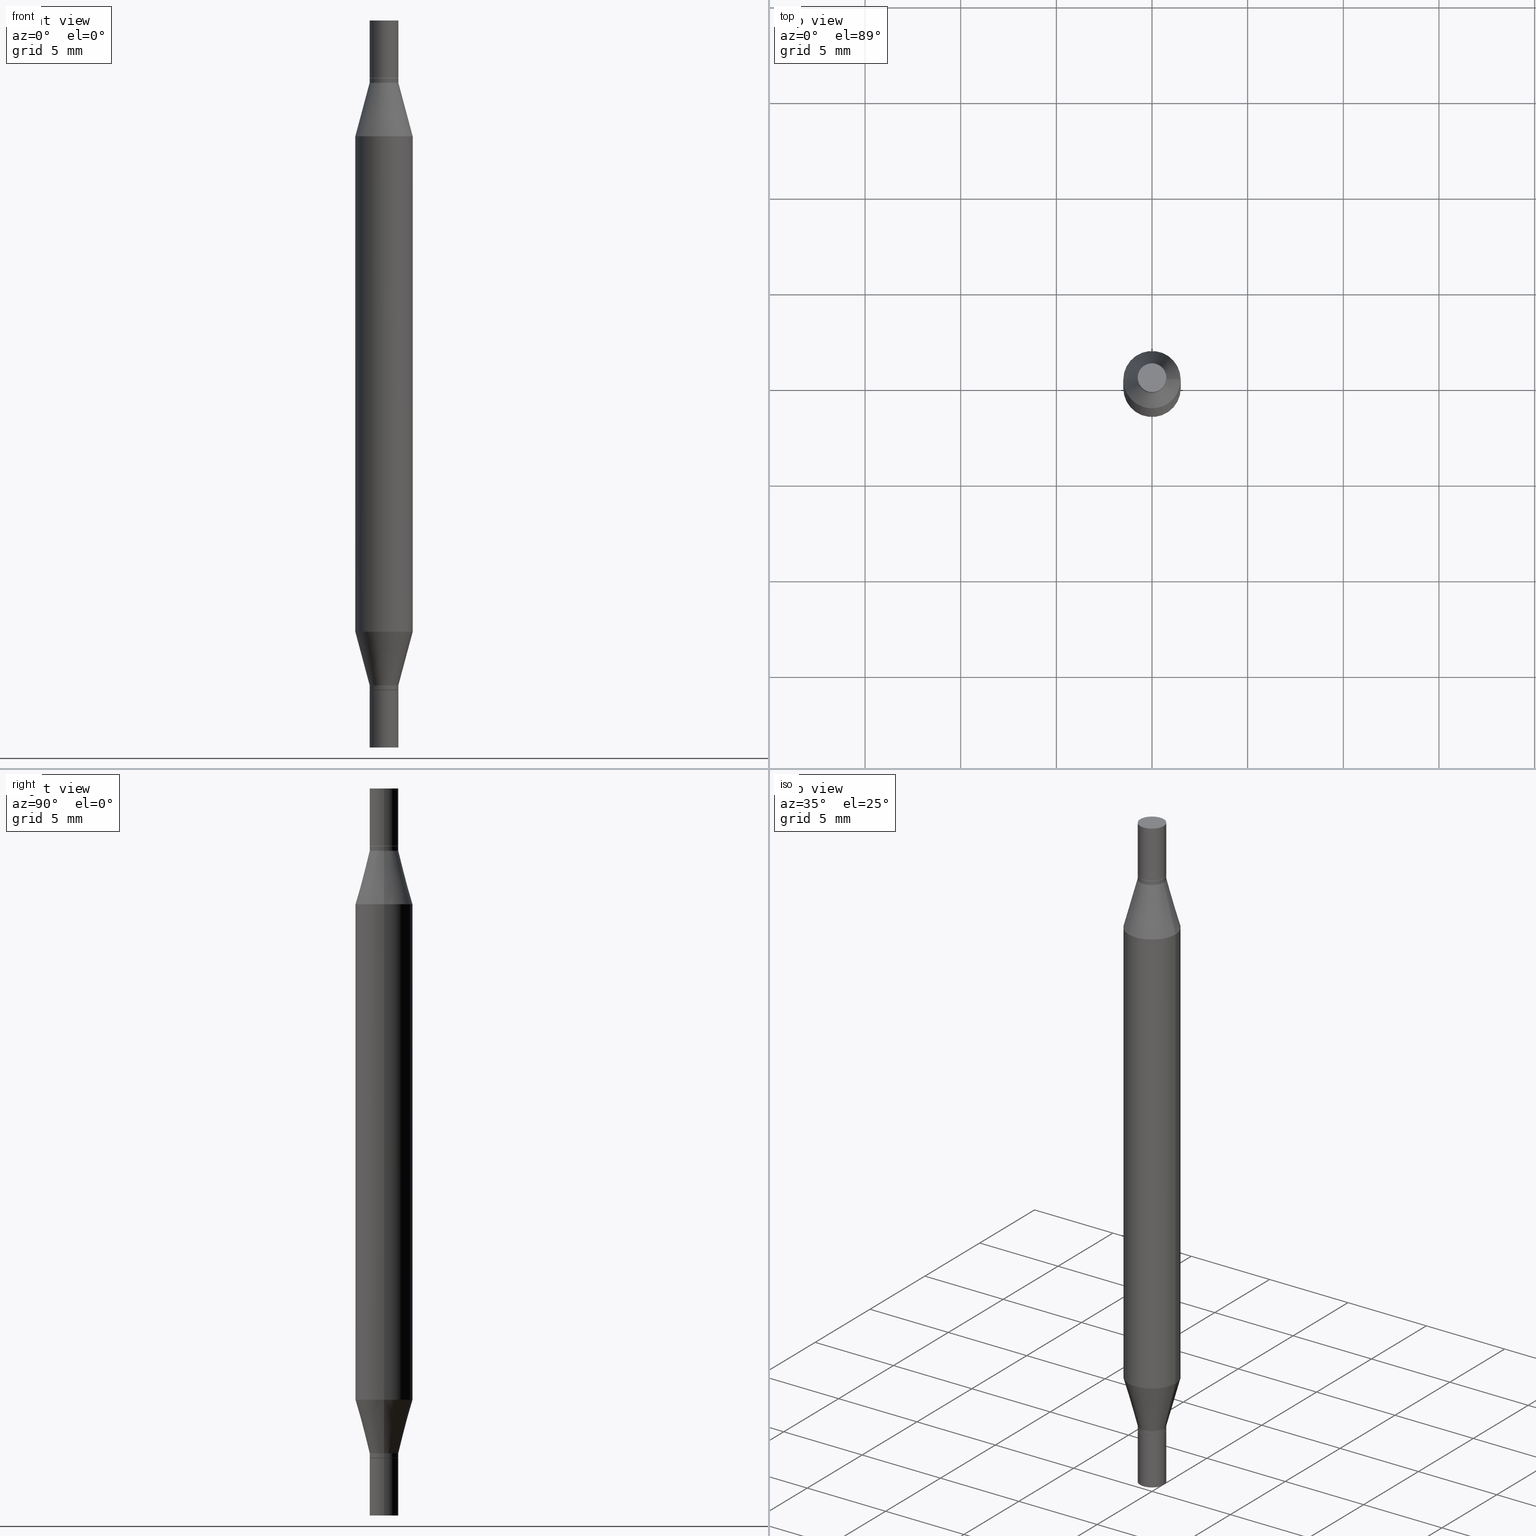
[diagram: canonical four-view strip — front | top / right | iso, engineering-drawing reading convention]
A machine part, canonical four-view strip (front | top / right | iso — engineering-drawing reading convention). The complete STEP part file that produces these views, byte-faithful:
ISO-10303-21;
HEADER;
FILE_DESCRIPTION (( 'STEP AP203' ),
    '1' );
FILE_NAME ('48906.STEP',
    '2024-03-04T16:11:44',
    ( '' ),
    ( '' ),
    'SwSTEP 2.0',
    'SolidWorks 2023',
    '' );
FILE_SCHEMA (( 'CONFIG_CONTROL_DESIGN' ));
ENDSEC;

DATA;
#1 = AXIS2_PLACEMENT_3D ( 'NONE', #169, #833, #771 ) ;
#2 = LINE ( 'NONE', #430, #437 ) ;
#3 = CIRCLE ( 'NONE', #189, 0.02954999999999999988 ) ;
#4 = CIRCLE ( 'NONE', #669, 0.02954999999999992008 ) ;
#5 = DIRECTION ( 'NONE',  ( 1.000000000000000000, -6.982962677686266711E-15, 0.000000000000000000 ) ) ;
#6 = EDGE_LOOP ( 'NONE', ( #239, #753 ) ) ;
#7 = CARTESIAN_POINT ( 'NONE',  ( 3.369856014923117948E-29, -4.121399959508538653E-16, -0.1181000000000000383 ) ) ;
#8 = ADVANCED_FACE ( 'NONE', ( #264 ), #190, .F. ) ;
#9 = ORIENTED_EDGE ( 'NONE', *, *, #658, .F. ) ;
#10 = DIRECTION ( 'NONE',  ( -2.445468806185136597E-29, -3.491805094961124077E-15, -1.000000000000000000 ) ) ;
#11 = EDGE_LOOP ( 'NONE', ( #249, #848 ) ) ;
#12 = ORIENTED_EDGE ( 'NONE', *, *, #870, .F. ) ;
#13 = ADVANCED_FACE ( 'NONE', ( #961 ), #325, .F. ) ;
#14 = ORIENTED_EDGE ( 'NONE', *, *, #86, .F. ) ;
#15 = VECTOR ( 'NONE', #125, 39.37007874015748143 ) ;
#16 = DIRECTION ( 'NONE',  ( 1.000000000000000000, -6.982962677686265922E-15, 2.260776888683160832E-33 ) ) ;
#17 = AXIS2_PLACEMENT_3D ( 'NONE', #973, #596, #891 ) ;
#18 = EDGE_LOOP ( 'NONE', ( #377, #414, #862, #243 ) ) ;
#19 = CYLINDRICAL_SURFACE ( 'NONE', #173, 0.02954999999999992008 ) ;
#20 = APPROVAL_PERSON_ORGANIZATION ( #432, #252, #894 ) ;
#21 = DIRECTION ( 'NONE',  ( 1.000000000000000000, -6.982962677686272233E-15, 0.000000000000000000 ) ) ;
#22 = ORIENTED_EDGE ( 'NONE', *, *, #946, .F. ) ;
#23 = CARTESIAN_POINT ( 'NONE',  ( 0.000000000000000000, -5.223847416807283040E-15, -1.496099999999999985 ) ) ;
#24 = EDGE_LOOP ( 'NONE', ( #176, #174, #216, #256 ) ) ;
#25 = EDGE_CURVE ( 'NONE', #634, #85, #66, .T. ) ;
#26 = EDGE_CURVE ( 'NONE', #297, #864, #639, .T. ) ;
#27 = CARTESIAN_POINT ( 'NONE',  ( -0.02954999999999992008, -2.111581826641858869E-16, -0.1185999999999999277 ) ) ;
#28 = ORIENTED_EDGE ( 'NONE', *, *, #896, .T. ) ;
#29 = DIRECTION ( 'NONE',  ( -2.445468806185136877E-29, -3.491805094961123683E-15, -1.000000000000000000 ) ) ;
#30 = ORIENTED_EDGE ( 'NONE', *, *, #859, .T. ) ;
#31 = CARTESIAN_POINT ( 'NONE',  ( 0.05904999999999999832, -1.243484836231766624E-15, -0.2380954988232820146 ) ) ;
#32 = PLANE ( 'NONE',  #280 ) ;
#33 = MANIFOLD_SOLID_BREP ( 'Combine1', #434 ) ;
#34 = VECTOR ( 'NONE', #141, 39.37007874015748143 ) ;
#35 = DIRECTION ( 'NONE',  ( -2.445468806185136877E-29, -3.491805094961123683E-15, -1.000000000000000000 ) ) ;
#36 = DIRECTION ( 'NONE',  ( 1.000000000000000000, -6.982962677686264344E-15, 0.000000000000000000 ) ) ;
#37 = VECTOR ( 'NONE', #423, 39.37007874015748143 ) ;
#38 = CIRCLE ( 'NONE', #294, 0.02954999999999992008 ) ;
#39 = EDGE_LOOP ( 'NONE', ( #299, #629, #374, #786 ) ) ;
#40 = CC_DESIGN_PERSON_AND_ORGANIZATION_ASSIGNMENT ( #413, #207, ( #506 ) ) ;
#41 = CARTESIAN_POINT ( 'NONE',  ( 0.000000000000000000, -5.223847416807283040E-15, -1.496099999999999985 ) ) ;
#42 = EDGE_CURVE ( 'NONE', #688, #316, #468, .T. ) ;
#43 = CARTESIAN_POINT ( 'NONE',  ( 3.076410765668156654E-29, -4.392299240039190746E-15, -1.258004501176717804 ) ) ;
#44 = DIRECTION ( 'NONE',  ( -0.2588190451025213501, -1.597197180879714326E-15, -0.9659258262890682012 ) ) ;
#45 = EDGE_CURVE ( 'NONE', #464, #46, #835, .T. ) ;
#46 = VERTEX_POINT ( 'NONE', #794 ) ;
#47 = CYLINDRICAL_SURFACE ( 'NONE', #764, 0.02954999999999992008 ) ;
#48 = EDGE_CURVE ( 'NONE', #482, #181, #731, .T. ) ;
#49 = DIRECTION ( 'NONE',  ( 2.445468806185136597E-29, 3.491805094961124077E-15, 1.000000000000000000 ) ) ;
#50 = CYLINDRICAL_SURFACE ( 'NONE', #935, 0.02954999999999992008 ) ;
#51 = ORIENTED_EDGE ( 'NONE', *, *, #704, .T. ) ;
#52 = CARTESIAN_POINT ( 'NONE',  ( 3.345645873741884627E-29, -4.467088663909703532E-16, -0.1280000000000001137 ) ) ;
#53 = CARTESIAN_POINT ( 'NONE',  ( -0.02954999999999999988, 2.099653784171096041E-16, -1.453545319170324550E-30 ) ) ;
#54 = DIRECTION ( 'NONE',  ( -2.445468806185136597E-29, -3.491805094961124077E-15, -1.000000000000000000 ) ) ;
#55 = AXIS2_PLACEMENT_3D ( 'NONE', #195, #330, #131 ) ;
#56 = AXIS2_PLACEMENT_3D ( 'NONE', #251, #561, #182 ) ;
#57 = VECTOR ( 'NONE', #95, 39.37007874015748143 ) ;
#58 = CARTESIAN_POINT ( 'NONE',  ( -0.02904999999999999596, -2.128425291155909173E-16, -0.1181000000000000383 ) ) ;
#59 = DIRECTION ( 'NONE',  ( 0.000000000000000000, 3.491643216902134435E-15, 1.000000000000000000 ) ) ;
#60 = CC_DESIGN_SECURITY_CLASSIFICATION ( #83, ( #415 ) ) ;
#61 = EDGE_CURVE ( 'NONE', #407, #571, #161, .T. ) ;
#62 = LINE ( 'NONE', #969, #603 ) ;
#63 = CARTESIAN_POINT ( 'NONE',  ( 0.02954999999999999988, -5.430193963932912651E-15, -1.496099999999999985 ) ) ;
#64 = DIRECTION ( 'NONE',  ( -2.445468806185136877E-29, -3.491805094961123683E-15, -1.000000000000000000 ) ) ;
#65 = CARTESIAN_POINT ( 'NONE',  ( 3.369856014923117948E-29, -4.121399959508538653E-16, -0.1181000000000000383 ) ) ;
#66 = CIRCLE ( 'NONE', #79, 0.02954999999999992008 ) ;
#67 = AXIS2_PLACEMENT_3D ( 'NONE', #597, #289, #151 ) ;
#68 = AXIS2_PLACEMENT_3D ( 'NONE', #140, #523, #439 ) ;
#69 = CARTESIAN_POINT ( 'NONE',  ( -0.05905000000000000526, -1.316359346049593906E-15, -0.7480499999999999927 ) ) ;
#70 = AXIS2_PLACEMENT_3D ( 'NONE', #903, #90, #774 ) ;
#71 = DIRECTION ( 'NONE',  ( 1.000000000000000000, -6.982962677686265922E-15, 4.876176775795935793E-29 ) ) ;
#72 = DATE_AND_TIME ( #593, #224 ) ;
#73 = CARTESIAN_POINT ( 'NONE',  ( 0.02954999999999992008, -6.202324456239627230E-16, -0.1185999999999999277 ) ) ;
#74 = DIRECTION ( 'NONE',  ( 2.445468806185136597E-29, 3.491805094961124077E-15, 1.000000000000000000 ) ) ;
#75 = VERTEX_POINT ( 'NONE', #653 ) ;
#76 = CARTESIAN_POINT ( 'NONE',  ( 3.076410765668156654E-29, -8.311408901143919011E-16, -0.2380954988232820146 ) ) ;
#77 = CARTESIAN_POINT ( 'NONE',  ( 0.02954999999999999988, -2.061043613615753919E-16, 6.680595706058740339E-35 ) ) ;
#78 = VERTEX_POINT ( 'NONE', #275 ) ;
#79 = AXIS2_PLACEMENT_3D ( 'NONE', #346, #562, #258 ) ;
#80 = AXIS2_PLACEMENT_3D ( 'NONE', #82, #373, #645 ) ;
#81 = VECTOR ( 'NONE', #29, 39.37007874015748143 ) ;
#82 = CARTESIAN_POINT ( 'NONE',  ( 3.076410765668156654E-29, -4.392299240039190746E-15, -1.258004501176717804 ) ) ;
#83 = SECURITY_CLASSIFICATION ( '', '', #511 ) ;
#84 = EDGE_CURVE ( 'NONE', #123, #601, #183, .T. ) ;
#85 = VERTEX_POINT ( 'NONE', #957 ) ;
#86 = EDGE_CURVE ( 'NONE', #631, #237, #602, .T. ) ;
#87 = CARTESIAN_POINT ( 'NONE',  ( 0.02954999999999991661, -4.983042166796936213E-15, -1.368099999999999872 ) ) ;
#88 = ORIENTED_EDGE ( 'NONE', *, *, #739, .T. ) ;
#89 = ORIENTED_EDGE ( 'NONE', *, *, #48, .T. ) ;
#90 = DIRECTION ( 'NONE',  ( -2.445468806185136597E-29, 3.491481338843145583E-15, 1.000000000000000000 ) ) ;
#91 = CYLINDRICAL_SURFACE ( 'NONE', #649, 0.05905000000000000526 ) ;
#92 = ORIENTED_EDGE ( 'NONE', *, *, #129, .F. ) ;
#93 = FACE_OUTER_BOUND ( 'NONE', #115, .T. ) ;
#94 = ORIENTED_EDGE ( 'NONE', *, *, #379, .F. ) ;
#95 = DIRECTION ( 'NONE',  ( 0.7071067811865656694, -2.468850131082446387E-15, 0.7071067811865294761 ) ) ;
#96 = AXIS2_PLACEMENT_3D ( 'NONE', #538, #380, #16 ) ;
#97 = DIRECTION ( 'NONE',  ( 0.2588190451025213501, -5.180148453816008779E-15, -0.9659258262890682012 ) ) ;
#98 = VECTOR ( 'NONE', #898, 39.37007874015747433 ) ;
#99 = APPROVAL ( #810, 'UNSPECIFIED' ) ;
#100 = CIRCLE ( 'NONE', #852, 0.02954999999999991661 ) ;
#101 = EDGE_LOOP ( 'NONE', ( #768, #929, #469, #830 ) ) ;
#102 = DIRECTION ( 'NONE',  ( 0.7071067811865656694, -7.406779323393341342E-15, -0.7071067811865294761 ) ) ;
#103 = ADVANCED_FACE ( 'NONE', ( #128 ), #422, .F. ) ;
#104 = ADVANCED_FACE ( 'NONE', ( #197 ), #498, .T. ) ;
#105 = VERTEX_POINT ( 'NONE', #879 ) ;
#106 = APPROVAL_PERSON_ORGANIZATION ( #139, #637, #742 ) ;
#107 = DIRECTION ( 'NONE',  ( -2.445468806185136597E-29, -3.491805094961124077E-15, -1.000000000000000000 ) ) ;
#108 = ORIENTED_EDGE ( 'NONE', *, *, #25, .T. ) ;
#109 = FACE_OUTER_BOUND ( 'NONE', #694, .T. ) ;
#110 = ORIENTED_EDGE ( 'NONE', *, *, #585, .T. ) ;
#111 = CYLINDRICAL_SURFACE ( 'NONE', #343, 0.02954999999999992008 ) ;
#112 = ORIENTED_EDGE ( 'NONE', *, *, #134, .T. ) ;
#113 = DIRECTION ( 'NONE',  ( 2.445468806185136597E-29, 3.491805094961124077E-15, 1.000000000000000000 ) ) ;
#114 = ORIENTED_EDGE ( 'NONE', *, *, #657, .T. ) ;
#115 = EDGE_LOOP ( 'NONE', ( #901, #390, #320, #837 ) ) ;
#116 = CC_DESIGN_DATE_AND_TIME_ASSIGNMENT ( #283, #678, ( #83 ) ) ;
#117 = DIRECTION ( 'NONE',  ( -2.445468806185136597E-29, 3.491481338843145583E-15, 1.000000000000000000 ) ) ;
#118 = DIRECTION ( 'NONE',  ( -2.445468806185136597E-29, -3.491805094961124077E-15, -1.000000000000000000 ) ) ;
#119 = VECTOR ( 'NONE', #35, 39.37007874015748143 ) ;
#120 = DIRECTION ( 'NONE',  ( 1.000000000000000000, -6.982962677686265133E-15, 0.000000000000000000 ) ) ;
#121 = CONICAL_SURFACE ( 'NONE', #700, 0.02904999999999999596, 0.7853981633974739252 ) ;
#122 = AXIS2_PLACEMENT_3D ( 'NONE', #384, #695, #307 ) ;
#123 = VERTEX_POINT ( 'NONE', #201 ) ;
#124 = CARTESIAN_POINT ( 'NONE',  ( 0.02904999999999999596, -5.014116350712640554E-15, -1.377999999999999892 ) ) ;
#125 = DIRECTION ( 'NONE',  ( -2.445468806185136877E-29, 3.491481338843145188E-15, 1.000000000000000000 ) ) ;
#126 = EDGE_LOOP ( 'NONE', ( #907, #677, #383, #819 ) ) ;
#127 = DIRECTION ( 'NONE',  ( 1.000000000000000000, -6.982962677686265922E-15, 0.000000000000000000 ) ) ;
#128 = FACE_OUTER_BOUND ( 'NONE', #6, .T. ) ;
#129 = EDGE_CURVE ( 'NONE', #287, #46, #504, .T. ) ;
#130 = LINE ( 'NONE', #798, #37 ) ;
#131 = DIRECTION ( 'NONE',  ( 1.000000000000000000, -6.982962677686265922E-15, 2.260776888683160832E-33 ) ) ;
#132 =( CONVERSION_BASED_UNIT ( 'INCH', #873 ) LENGTH_UNIT ( ) NAMED_UNIT ( #648 ) );
#133 = CC_DESIGN_PERSON_AND_ORGANIZATION_ASSIGNMENT ( #689, #886, ( #83 ) ) ;
#134 = EDGE_CURVE ( 'NONE', #932, #614, #789, .T. ) ;
#135 = CONICAL_SURFACE ( 'NONE', #684, 0.02954999999999991661, 0.2617993877991500740 ) ;
#136 = AXIS2_PLACEMENT_3D ( 'NONE', #268, #874, #321 ) ;
#137 = DIRECTION ( 'NONE',  ( 1.000000000000000000, -6.982962677686281699E-15, 0.000000000000000000 ) ) ;
#138 = DIRECTION ( 'NONE',  ( 1.000000000000000000, -6.982962677686265922E-15, 0.000000000000000000 ) ) ;
#139 = PERSON_AND_ORGANIZATION ( #187, #477 ) ;
#140 = CARTESIAN_POINT ( 'NONE',  ( 3.658665880933582389E-29, 2.421857640538043390E-19, 0.000000000000000000 ) ) ;
#141 = DIRECTION ( 'NONE',  ( -2.445468806185136877E-29, -3.491805094961123683E-15, -1.000000000000000000 ) ) ;
#142 = EDGE_CURVE ( 'NONE', #237, #631, #188, .T. ) ;
#143 = EDGE_CURVE ( 'NONE', #163, #462, #412, .T. ) ;
#144 = CARTESIAN_POINT ( 'NONE',  ( 3.369856014923117948E-29, -4.121399959508538653E-16, -0.1181000000000000383 ) ) ;
#145 = DIRECTION ( 'NONE',  ( 1.000000000000000000, -6.982962677686266711E-15, 0.000000000000000000 ) ) ;
#146 = CLOSED_SHELL ( 'NONE', ( #520, #8, #582, #269 ) ) ;
#147 = VECTOR ( 'NONE', #687, 39.37007874015748143 ) ;
#148 = AXIS2_PLACEMENT_3D ( 'NONE', #361, #445, #679 ) ;
#149 = DIRECTION ( 'NONE',  ( -0.7071067811865656694, 2.382025595312421833E-15, -0.7071067811865294761 ) ) ;
#150 = EDGE_CURVE ( 'NONE', #226, #571, #286, .T. ) ;
#151 = DIRECTION ( 'NONE',  ( 1.000000000000000000, -6.982962677686266711E-15, 4.876176775795935793E-29 ) ) ;
#152 = EDGE_LOOP ( 'NONE', ( #30, #730 ) ) ;
#153 = FACE_OUTER_BOUND ( 'NONE', #529, .T. ) ;
#154 = CARTESIAN_POINT ( 'NONE',  ( 3.368633280520025146E-29, -4.138858984983355777E-16, -0.1185999999999999277 ) ) ;
#155 = CALENDAR_DATE ( 2024, 4, 3 ) ;
#156 = ADVANCED_FACE ( 'NONE', ( #892 ), #683, .T. ) ;
#157 = LINE ( 'NONE', #300, #57 ) ;
#158 = DIRECTION ( 'NONE',  ( 1.000000000000000000, -6.982962677686265922E-15, 2.260776888683160832E-33 ) ) ;
#159 = ORIENTED_EDGE ( 'NONE', *, *, #386, .T. ) ;
#160 = PERSON_AND_ORGANIZATION_ROLE ( 'creator' ) ;
#161 = CIRCLE ( 'NONE', #263, 0.02954999999999999988 ) ;
#162 = CIRCLE ( 'NONE', #619, 0.02954999999999992008 ) ;
#163 = VERTEX_POINT ( 'NONE', #215 ) ;
#164 = ORIENTED_EDGE ( 'NONE', *, *, #551, .T. ) ;
#165 = LINE ( 'NONE', #710, #436 ) ;
#166 = ORIENTED_EDGE ( 'NONE', *, *, #925, .T. ) ;
#167 = CARTESIAN_POINT ( 'NONE',  ( 3.369856014923117948E-29, -4.811261284925853951E-15, -1.377999999999999892 ) ) ;
#168 = ORIENTED_EDGE ( 'NONE', *, *, #45, .F. ) ;
#169 = CARTESIAN_POINT ( 'NONE',  ( 3.369856014923117948E-29, -4.121399959508538653E-16, -0.1181000000000000383 ) ) ;
#170 = ORIENTED_EDGE ( 'NONE', *, *, #474, .T. ) ;
#171 = AXIS2_PLACEMENT_3D ( 'NONE', #889, #74, #353 ) ;
#172 = CARTESIAN_POINT ( 'NONE',  ( -0.02954999999999991661, -2.275696666105042854E-16, -0.1280000000000001137 ) ) ;
#173 = AXIS2_PLACEMENT_3D ( 'NONE', #23, #849, #923 ) ;
#174 = ORIENTED_EDGE ( 'NONE', *, *, #966, .T. ) ;
#175 = LINE ( 'NONE', #467, #81 ) ;
#176 = ORIENTED_EDGE ( 'NONE', *, *, #551, .F. ) ;
#177 = ORIENTED_EDGE ( 'NONE', *, *, #474, .F. ) ;
#178 = DIRECTION ( 'NONE',  ( 2.445468806185136597E-29, 3.491805094961124077E-15, 1.000000000000000000 ) ) ;
#179 = ORIENTED_EDGE ( 'NONE', *, *, #150, .T. ) ;
#180 = LINE ( 'NONE', #717, #685 ) ;
#181 = VERTEX_POINT ( 'NONE', #592 ) ;
#182 = DIRECTION ( 'NONE',  ( 1.000000000000000000, -6.982962677686266711E-15, 4.876176775795935232E-29 ) ) ;
#183 = LINE ( 'NONE', #334, #322 ) ;
#184 = DIRECTION ( 'NONE',  ( -2.445468806185136597E-29, -3.491805094961124077E-15, -1.000000000000000000 ) ) ;
#185 = ORIENTED_EDGE ( 'NONE', *, *, #841, .T. ) ;
#186 = FACE_OUTER_BOUND ( 'NONE', #696, .T. ) ;
#187 = PERSON ( 'UNSPECIFIED', 'UNSPECIFIED', 'UNSPECIFIED', ('UNSPECIFIED'), ('UNSPECIFIED'), ('UNSPECIFIED') ) ;
#188 = CIRCLE ( 'NONE', #244, 0.05904999999999999832 ) ;
#189 = AXIS2_PLACEMENT_3D ( 'NONE', #204, #747, #751 ) ;
#190 = PLANE ( 'NONE',  #55 ) ;
#191 = CONICAL_SURFACE ( 'NONE', #292, 0.02954999999999991661, 0.2617993877991500740 ) ;
#192 = EDGE_CURVE ( 'NONE', #634, #75, #362, .T. ) ;
#193 = ORIENTED_EDGE ( 'NONE', *, *, #150, .F. ) ;
#194 = CARTESIAN_POINT ( 'NONE',  ( 0.000000000000000000, -5.223847416807283040E-15, -1.496099999999999985 ) ) ;
#195 = CARTESIAN_POINT ( 'NONE',  ( 3.511898583110818647E-29, -2.099369381939656466E-16, 0.000000000000000000 ) ) ;
#196 = FACE_OUTER_BOUND ( 'NONE', #420, .T. ) ;
#197 = FACE_OUTER_BOUND ( 'NONE', #924, .T. ) ;
#198 = LINE ( 'NONE', #951, #721 ) ;
#199 = EDGE_CURVE ( 'NONE', #772, #932, #734, .T. ) ;
#200 = DIRECTION ( 'NONE',  ( -2.445468806185136597E-29, 3.491481338843145583E-15, 1.000000000000000000 ) ) ;
#201 = CARTESIAN_POINT ( 'NONE',  ( 0.02954999999999992008, -5.015862091382062058E-15, -1.377499999999999947 ) ) ;
#202 = CARTESIAN_POINT ( 'NONE',  ( 0.000000000000000000, -5.223847416807283040E-15, -1.496099999999999985 ) ) ;
#203 = AXIS2_PLACEMENT_3D ( 'NONE', #43, #799, #583 ) ;
#204 = CARTESIAN_POINT ( 'NONE',  ( 3.658665880933582389E-29, 2.421857640538043390E-19, 0.000000000000000000 ) ) ;
#205 = APPROVAL_PERSON_ORGANIZATION ( #754, #99, #906 ) ;
#206 = LINE ( 'NONE', #964, #233 ) ;
#207 = PERSON_AND_ORGANIZATION_ROLE ( 'creator' ) ;
#208 = EDGE_CURVE ( 'NONE', #85, #310, #206, .T. ) ;
#209 = EDGE_CURVE ( 'NONE', #922, #226, #763, .T. ) ;
#210 = DIRECTION ( 'NONE',  ( -2.445468806185136597E-29, 3.491481338843145583E-15, 1.000000000000000000 ) ) ;
#211 = DIRECTION ( 'NONE',  ( -2.445468806185136877E-29, -3.491805094961123683E-15, -1.000000000000000000 ) ) ;
#212 = DATE_AND_TIME ( #155, #820 ) ;
#213 = EDGE_CURVE ( 'NONE', #163, #403, #452, .T. ) ;
#214 = DIRECTION ( 'NONE',  ( 1.000000000000000000, -6.982962677686266711E-15, 0.000000000000000000 ) ) ;
#215 = CARTESIAN_POINT ( 'NONE',  ( 0.02954999999999992008, -6.202324456239627230E-16, -0.1185999999999999277 ) ) ;
#216 = ORIENTED_EDGE ( 'NONE', *, *, #84, .T. ) ;
#217 = CARTESIAN_POINT ( 'NONE',  ( 3.369856014923117948E-29, -4.121399959508538653E-16, -0.1181000000000000383 ) ) ;
#218 = VECTOR ( 'NONE', #723, 39.37007874015748143 ) ;
#219 = AXIS2_PLACEMENT_3D ( 'NONE', #744, #808, #426 ) ;
#220 = CARTESIAN_POINT ( 'NONE',  ( 3.345645873741884627E-29, -4.776695619671307391E-15, -1.368099999999999872 ) ) ;
#221 = PLANE ( 'NONE',  #718 ) ;
#222 = ORIENTED_EDGE ( 'NONE', *, *, #610, .F. ) ;
#223 = EDGE_CURVE ( 'NONE', #601, #287, #291, .T. ) ;
#224 = LOCAL_TIME ( 11, 11, 44.00000000000000000, #813 ) ;
#225 = DIRECTION ( 'NONE',  ( 1.000000000000000000, -6.982962677686261977E-15, 0.000000000000000000 ) ) ;
#226 = VERTEX_POINT ( 'NONE', #77 ) ;
#227 = EDGE_CURVE ( 'NONE', #403, #105, #278, .T. ) ;
#228 = EDGE_LOOP ( 'NONE', ( #532, #725 ) ) ;
#229 = CARTESIAN_POINT ( 'NONE',  ( -0.05905000000000000526, -4.818735010038875060E-15, -1.496099999999999985 ) ) ;
#230 = ORIENTED_EDGE ( 'NONE', *, *, #912, .F. ) ;
#231 = EDGE_LOOP ( 'NONE', ( #363, #549, #28, #719 ) ) ;
#232 = ORIENTED_EDGE ( 'NONE', *, *, #45, .T. ) ;
#233 = VECTOR ( 'NONE', #211, 39.37007874015748143 ) ;
#234 = CARTESIAN_POINT ( 'NONE',  ( -0.02954999999999999988, -3.221189259251762717E-18, 7.347294627798473966E-31 ) ) ;
#235 = ORIENTED_EDGE ( 'NONE', *, *, #227, .F. ) ;
#236 = ADVANCED_FACE ( 'NONE', ( #818 ), #517, .T. ) ;
#237 = VERTEX_POINT ( 'NONE', #812 ) ;
#238 = CARTESIAN_POINT ( 'NONE',  ( 3.369856014923117948E-29, -4.121399959508538653E-16, -0.1181000000000000383 ) ) ;
#239 = ORIENTED_EDGE ( 'NONE', *, *, #453, .T. ) ;
#240 = ORIENTED_EDGE ( 'NONE', *, *, #610, .T. ) ;
#241 = PLANE ( 'NONE',  #96 ) ;
#242 = ORIENTED_EDGE ( 'NONE', *, *, #142, .F. ) ;
#243 = ORIENTED_EDGE ( 'NONE', *, *, #896, .F. ) ;
#244 = AXIS2_PLACEMENT_3D ( 'NONE', #939, #860, #120 ) ;
#245 = CARTESIAN_POINT ( 'NONE',  ( 3.369856014923117948E-29, -4.121399959508538653E-16, -0.1181000000000000383 ) ) ;
#246 = AXIS2_PLACEMENT_3D ( 'NONE', #342, #54, #419 ) ;
#247 = VERTEX_POINT ( 'NONE', #441 ) ;
#248 = DIRECTION ( 'NONE',  ( 2.445468806185136597E-29, 3.491805094961124077E-15, 1.000000000000000000 ) ) ;
#249 = ORIENTED_EDGE ( 'NONE', *, *, #612, .T. ) ;
#250 = DIRECTION ( 'NONE',  ( 2.445468806185136597E-29, 3.491805094961124077E-15, 1.000000000000000000 ) ) ;
#251 = CARTESIAN_POINT ( 'NONE',  ( 0.000000000000000000, 0.000000000000000000, 0.000000000000000000 ) ) ;
#252 = APPROVAL ( #448, 'UNSPECIFIED' ) ;
#253 = ADVANCED_FACE ( 'NONE', ( #828 ), #776, .T. ) ;
#254 = CARTESIAN_POINT ( 'NONE',  ( -0.05905000000000000526, -4.818735010038875060E-15, -1.496099999999999985 ) ) ;
#255 = LINE ( 'NONE', #778, #537 ) ;
#256 = ORIENTED_EDGE ( 'NONE', *, *, #704, .F. ) ;
#257 = DIRECTION ( 'NONE',  ( 2.445468806185136597E-29, 3.491805094961124077E-15, 1.000000000000000000 ) ) ;
#258 = DIRECTION ( 'NONE',  ( 1.000000000000000000, -6.982962677686264344E-15, 0.000000000000000000 ) ) ;
#259 = DIRECTION ( 'NONE',  ( 1.000000000000000000, 0.000000000000000000, 0.000000000000000000 ) ) ;
#260 = ORIENTED_EDGE ( 'NONE', *, *, #743, .F. ) ;
#261 = CLOSED_SHELL ( 'NONE', ( #382, #855, #869, #429, #103, #364, #277, #514, #500, #104 ) ) ;
#262 = DIRECTION ( 'NONE',  ( 1.000000000000000000, -6.982962677686278543E-15, 0.000000000000000000 ) ) ;
#263 = AXIS2_PLACEMENT_3D ( 'NONE', #418, #49, #138 ) ;
#264 = FACE_OUTER_BOUND ( 'NONE', #11, .T. ) ;
#265 = DIRECTION ( 'NONE',  ( -2.445468806185136597E-29, 3.491481338843145583E-15, 1.000000000000000000 ) ) ;
#266 = CIRCLE ( 'NONE', #622, 0.02904999999999999596 ) ;
#267 = CC_DESIGN_PERSON_AND_ORGANIZATION_ASSIGNMENT ( #360, #674, ( #415 ) ) ;
#268 = CARTESIAN_POINT ( 'NONE',  ( 3.511898583110818647E-29, -2.099369381939656466E-16, 0.000000000000000000 ) ) ;
#269 = ADVANCED_FACE ( 'NONE', ( #431 ), #367, .F. ) ;
#270 = DIRECTION ( 'NONE',  ( -1.000000000000000000, 6.982962677686265922E-15, -4.876176775795935793E-29 ) ) ;
#271 = DIRECTION ( 'NONE',  ( -2.438088387897960049E-29, 3.491481338843145188E-15, 1.000000000000000000 ) ) ;
#272 = DIRECTION ( 'NONE',  ( 1.000000000000000000, -6.982962677686280910E-15, 0.000000000000000000 ) ) ;
#273 = ADVANCED_FACE ( 'NONE', ( #900 ), #221, .F. ) ;
#274 = CARTESIAN_POINT ( 'NONE',  ( 0.000000000000000000, -5.223847416807283040E-15, -1.496099999999999985 ) ) ;
#275 = CARTESIAN_POINT ( 'NONE',  ( -0.02904999999999999596, -2.120003558898884021E-16, -0.1181000000000000383 ) ) ;
#276 = CARTESIAN_POINT ( 'NONE',  ( 3.369856014923117948E-29, -4.121399959508538653E-16, -0.1181000000000000383 ) ) ;
#277 = ADVANCED_FACE ( 'NONE', ( #680 ), #746, .T. ) ;
#278 = LINE ( 'NONE', #446, #34 ) ;
#279 = DATE_AND_TIME ( #965, #327 ) ;
#280 = AXIS2_PLACEMENT_3D ( 'NONE', #329, #641, #270 ) ;
#281 = DIRECTION ( 'NONE',  ( 1.000000000000000000, -6.982962677686266711E-15, 0.000000000000000000 ) ) ;
#282 = DIRECTION ( 'NONE',  ( -2.445468806185136877E-29, -3.491805094961123683E-15, -1.000000000000000000 ) ) ;
#283 = DATE_AND_TIME ( #609, #606 ) ;
#284 = ADVANCED_FACE ( 'NONE', ( #296 ), #607, .T. ) ;
#285 = DIRECTION ( 'NONE',  ( 2.445468806185136597E-29, 3.491805094961124077E-15, 1.000000000000000000 ) ) ;
#286 = LINE ( 'NONE', #63, #967 ) ;
#287 = VERTEX_POINT ( 'NONE', #527 ) ;
#288 = DIRECTION ( 'NONE',  ( 2.438088387897959208E-29, 3.491805094961123683E-15, 1.000000000000000000 ) ) ;
#289 = DIRECTION ( 'NONE',  ( -2.445468806185136597E-29, 3.491481338843145583E-15, 1.000000000000000000 ) ) ;
#290 = ORIENTED_EDGE ( 'NONE', *, *, #143, .T. ) ;
#291 = CIRCLE ( 'NONE', #916, 0.02954999999999991661 ) ;
#292 = AXIS2_PLACEMENT_3D ( 'NONE', #338, #715, #871 ) ;
#293 = CC_DESIGN_PERSON_AND_ORGANIZATION_ASSIGNMENT ( #347, #661, ( #627 ) ) ;
#294 = AXIS2_PLACEMENT_3D ( 'NONE', #933, #248, #36 ) ;
#295 = DIRECTION ( 'NONE',  ( -2.445468806185136597E-29, 3.491481338843145583E-15, 1.000000000000000000 ) ) ;
#296 = FACE_OUTER_BOUND ( 'NONE', #528, .T. ) ;
#297 = VERTEX_POINT ( 'NONE', #427 ) ;
#298 = LOCAL_TIME ( 11, 11, 44.00000000000000000, #825 ) ;
#299 = ORIENTED_EDGE ( 'NONE', *, *, #890, .F. ) ;
#300 = CARTESIAN_POINT ( 'NONE',  ( 0.02904999999999999596, -5.014116350712640554E-15, -1.377999999999999892 ) ) ;
#301 = DIRECTION ( 'NONE',  ( 0.000000000000000000, 1.000000000000000000, -4.626330217890369336E-15 ) ) ;
#302 = EDGE_LOOP ( 'NONE', ( #319, #893, #9, #260 ) ) ;
#303 = VERTEX_POINT ( 'NONE', #741 ) ;
#304 = CARTESIAN_POINT ( 'NONE',  ( 0.02904999999999999596, -6.149950617376399263E-16, -0.1181000000000000383 ) ) ;
#305 = EDGE_LOOP ( 'NONE', ( #681, #709 ) ) ;
#306 = VERTEX_POINT ( 'NONE', #542 ) ;
#307 = DIRECTION ( 'NONE',  ( 1.000000000000000000, -6.982962677686265922E-15, 0.000000000000000000 ) ) ;
#308 = EDGE_CURVE ( 'NONE', #601, #464, #617, .T. ) ;
#309 = AXIS2_PLACEMENT_3D ( 'NONE', #359, #672, #5 ) ;
#310 = VERTEX_POINT ( 'NONE', #172 ) ;
#311 = AXIS2_PLACEMENT_3D ( 'NONE', #194, #722, #875 ) ;
#312 = AXIS2_PLACEMENT_3D ( 'NONE', #276, #883, #281 ) ;
#313 = DIRECTION ( 'NONE',  ( -2.445468806185136597E-29, -3.491805094961124077E-15, -1.000000000000000000 ) ) ;
#314 = ORIENTED_EDGE ( 'NONE', *, *, #912, .T. ) ;
#315 = DIRECTION ( 'NONE',  ( 1.000000000000000000, -6.982962677686261977E-15, 0.000000000000000000 ) ) ;
#316 = VERTEX_POINT ( 'NONE', #234 ) ;
#317 = DIRECTION ( 'NONE',  ( 1.000000000000000000, -6.982962677686261977E-15, 0.000000000000000000 ) ) ;
#318 = DIRECTION ( 'NONE',  ( -2.445468806185136597E-29, -3.491805094961124077E-15, -1.000000000000000000 ) ) ;
#319 = ORIENTED_EDGE ( 'NONE', *, *, #547, .T. ) ;
#320 = ORIENTED_EDGE ( 'NONE', *, *, #478, .T. ) ;
#321 = DIRECTION ( 'NONE',  ( 1.000000000000000000, -6.982962677686265922E-15, 2.260776888683160832E-33 ) ) ;
#322 = VECTOR ( 'NONE', #496, 39.37007874015748143 ) ;
#323 = DIRECTION ( 'NONE',  ( -2.445468806185136597E-29, 3.491481338843145583E-15, 1.000000000000000000 ) ) ;
#324 = AXIS2_PLACEMENT_3D ( 'NONE', #217, #759, #980 ) ;
#325 = PLANE ( 'NONE',  #802 ) ;
#326 = ORIENTED_EDGE ( 'NONE', *, *, #336, .T. ) ;
#327 = LOCAL_TIME ( 11, 11, 44.00000000000000000, #350 ) ;
#328 = DIRECTION ( 'NONE',  ( 1.000000000000000000, -6.982962677686266711E-15, 4.876176775795935232E-29 ) ) ;
#329 = CARTESIAN_POINT ( 'NONE',  ( 2.063465471256628659E-16, 0.02954999999999519122, -1.377999999999999892 ) ) ;
#330 = DIRECTION ( 'NONE',  ( -2.438088387897959208E-29, -3.491805094961123683E-15, -1.000000000000000000 ) ) ;
#331 = VERTEX_POINT ( 'NONE', #304 ) ;
#332 = FACE_OUTER_BOUND ( 'NONE', #101, .T. ) ;
#333 = DIRECTION ( 'NONE',  ( -2.445468806185136597E-29, -3.491805094961124077E-15, -1.000000000000000000 ) ) ;
#334 = CARTESIAN_POINT ( 'NONE',  ( 0.02954999999999992008, -2.063465471256286244E-16, 1.440910237247695041E-30 ) ) ;
#335 = CARTESIAN_POINT ( 'NONE',  ( -0.02954999999999991661, -2.439811505568221169E-16, -0.1280000000000001137 ) ) ;
#336 = EDGE_CURVE ( 'NONE', #316, #381, #926, .T. ) ;
#337 = EDGE_LOOP ( 'NONE', ( #460, #857, #975, #780 ) ) ;
#338 = CARTESIAN_POINT ( 'NONE',  ( 3.345645873741884627E-29, -4.467088663909703532E-16, -0.1280000000000001137 ) ) ;
#339 = AXIS2_PLACEMENT_3D ( 'NONE', #752, #600, #668 ) ;
#340 = AXIS2_PLACEMENT_3D ( 'NONE', #144, #815, #214 ) ;
#341 = CARTESIAN_POINT ( 'NONE',  ( 0.02954999999999999988, -2.063465471256291914E-16, 1.440910237247699070E-30 ) ) ;
#342 = CARTESIAN_POINT ( 'NONE',  ( 0.000000000000000000, -5.223847416807283040E-15, -1.496099999999999985 ) ) ;
#343 = AXIS2_PLACEMENT_3D ( 'NONE', #402, #117, #328 ) ;
#344 = MANIFOLD_SOLID_BREP ( 'Mirror1[3]', #697 ) ;
#345 = DIRECTION ( 'NONE',  ( -0.7071067811865656694, 2.382025595312421833E-15, -0.7071067811865294761 ) ) ;
#346 = CARTESIAN_POINT ( 'NONE',  ( 3.368633280520025146E-29, -4.138858984983355777E-16, -0.1185999999999999277 ) ) ;
#347 = PERSON_AND_ORGANIZATION ( #187, #477 ) ;
#348 = LINE ( 'NONE', #662, #884 ) ;
#349 = DIRECTION ( 'NONE',  ( 2.445468806185136597E-29, 3.491805094961124077E-15, 1.000000000000000000 ) ) ;
#350 = COORDINATED_UNIVERSAL_TIME_OFFSET ( 5, 0, .BEHIND. ) ;
#351 = MANIFOLD_SOLID_BREP ( 'Mirror1[4]', #146 ) ;
#352 = CARTESIAN_POINT ( 'NONE',  ( 3.658665880933582389E-29, -5.223605231043229660E-15, -1.496099999999999985 ) ) ;
#353 = DIRECTION ( 'NONE',  ( 1.000000000000000000, -6.982962677686265133E-15, 0.000000000000000000 ) ) ;
#354 = CALENDAR_DATE ( 2024, 4, 3 ) ;
#355 = AXIS2_PLACEMENT_3D ( 'NONE', #154, #349, #885 ) ;
#356 = AXIS2_PLACEMENT_3D ( 'NONE', #495, #854, #858 ) ;
#357 = CIRCLE ( 'NONE', #122, 0.02954999999999999988 ) ;
#358 = FACE_OUTER_BOUND ( 'NONE', #388, .T. ) ;
#359 = CARTESIAN_POINT ( 'NONE',  ( 3.369856014923117948E-29, -4.121399959508538653E-16, -0.1181000000000000383 ) ) ;
#360 = PERSON_AND_ORGANIZATION ( #187, #477 ) ;
#361 = CARTESIAN_POINT ( 'NONE',  ( 3.345645873741884627E-29, -4.467088663909703532E-16, -0.1280000000000001137 ) ) ;
#362 = LINE ( 'NONE', #745, #633 ) ;
#363 = ORIENTED_EDGE ( 'NONE', *, *, #578, .F. ) ;
#364 = ADVANCED_FACE ( 'NONE', ( #842 ), #241, .F. ) ;
#365 = EDGE_CURVE ( 'NONE', #75, #772, #165, .T. ) ;
#366 = DIRECTION ( 'NONE',  ( -0.7071067811865656694, 7.493145998870420424E-15, 0.7071067811865294761 ) ) ;
#367 = PLANE ( 'NONE',  #488 ) ;
#368 = ORIENTED_EDGE ( 'NONE', *, *, #698, .T. ) ;
#369 = AXIS2_PLACEMENT_3D ( 'NONE', #579, #575, #872 ) ;
#370 = AXIS2_PLACEMENT_3D ( 'NONE', #393, #706, #315 ) ;
#371 = ORIENTED_EDGE ( 'NONE', *, *, #453, .F. ) ;
#372 = CONICAL_SURFACE ( 'NONE', #438, 0.02954999999999991661, 0.2617993877991500740 ) ;
#373 = DIRECTION ( 'NONE',  ( -2.445468806185136597E-29, 3.491481338843145583E-15, 1.000000000000000000 ) ) ;
#374 = ORIENTED_EDGE ( 'NONE', *, *, #760, .T. ) ;
#375 = DATE_TIME_ROLE ( 'creation_date' ) ;
#376 = MANIFOLD_SOLID_BREP ( 'Body-Move/Copy2[1]', #790 ) ;
#377 = ORIENTED_EDGE ( 'NONE', *, *, #829, .F. ) ;
#378 = ADVANCED_FACE ( 'NONE', ( #692 ), #552, .T. ) ;
#379 = EDGE_CURVE ( 'NONE', #237, #46, #908, .T. ) ;
#380 = DIRECTION ( 'NONE',  ( -2.438088387897959208E-29, -3.491805094961123683E-15, -1.000000000000000000 ) ) ;
#381 = VERTEX_POINT ( 'NONE', #548 ) ;
#382 = ADVANCED_FACE ( 'NONE', ( #461 ), #91, .T. ) ;
#383 = ORIENTED_EDGE ( 'NONE', *, *, #192, .T. ) ;
#384 = CARTESIAN_POINT ( 'NONE',  ( 3.369856014923117948E-29, -4.121399959508538653E-16, -0.1181000000000000383 ) ) ;
#385 = VERTEX_POINT ( 'NONE', #531 ) ;
#386 = EDGE_CURVE ( 'NONE', #247, #381, #952, .T. ) ;
#387 = DIRECTION ( 'NONE',  ( 1.000000000000000000, -6.982962677686266711E-15, 0.000000000000000000 ) ) ;
#388 = EDGE_LOOP ( 'NONE', ( #758, #459, #483, #911 ) ) ;
#389 = AXIS2_PLACEMENT_3D ( 'NONE', #238, #10, #472 ) ;
#390 = ORIENTED_EDGE ( 'NONE', *, *, #208, .T. ) ;
#391 = CIRCLE ( 'NONE', #80, 0.05904999999999999832 ) ;
#392 = DIRECTION ( 'NONE',  ( 2.445468806185136597E-29, 3.491805094961124077E-15, 1.000000000000000000 ) ) ;
#393 = CARTESIAN_POINT ( 'NONE',  ( 3.369856014923117948E-29, -4.811261284925853951E-15, -1.377999999999999892 ) ) ;
#394 = ORIENTED_EDGE ( 'NONE', *, *, #686, .F. ) ;
#395 = ORIENTED_EDGE ( 'NONE', *, *, #336, .F. ) ;
#396 = CARTESIAN_POINT ( 'NONE',  ( 3.658665880933582389E-29, -5.223605231043229660E-15, -1.496099999999999985 ) ) ;
#397 = CARTESIAN_POINT ( 'NONE',  ( -0.02954999999999999988, -5.021119700973134755E-15, -1.496099999999999985 ) ) ;
#398 = EDGE_LOOP ( 'NONE', ( #797, #475 ) ) ;
#399 = FACE_OUTER_BOUND ( 'NONE', #868, .T. ) ;
#400 = PRODUCT_DEFINITION_SHAPE ( 'NONE', 'NONE',  #506 ) ;
#401 = EDGE_LOOP ( 'NONE', ( #770, #114, #693, #557 ) ) ;
#402 = CARTESIAN_POINT ( 'NONE',  ( 0.000000000000000000, 0.000000000000000000, 0.000000000000000000 ) ) ;
#403 = VERTEX_POINT ( 'NONE', #27 ) ;
#404 = DIRECTION ( 'NONE',  ( 1.000000000000000000, -6.982962677686265133E-15, 0.000000000000000000 ) ) ;
#405 = VERTEX_POINT ( 'NONE', #457 ) ;
#406 = CARTESIAN_POINT ( 'NONE',  ( 3.345645873741884627E-29, -4.467088663909703532E-16, -0.1280000000000001137 ) ) ;
#407 = VERTEX_POINT ( 'NONE', #921 ) ;
#408 = AXIS2_PLACEMENT_3D ( 'NONE', #569, #59, #642 ) ;
#409 = CARTESIAN_POINT ( 'NONE',  ( 3.369856014923117948E-29, -4.121399959508538653E-16, -0.1181000000000000383 ) ) ;
#410 = AXIS2_PLACEMENT_3D ( 'NONE', #409, #257, #127 ) ;
#411 = CIRCLE ( 'NONE', #324, 0.02904999999999999596 ) ;
#412 = LINE ( 'NONE', #943, #218 ) ;
#413 = PERSON_AND_ORGANIZATION ( #187, #477 ) ;
#414 = ORIENTED_EDGE ( 'NONE', *, *, #578, .T. ) ;
#415 = PRODUCT_DEFINITION_FORMATION_WITH_SPECIFIED_SOURCE ( 'ANY', '', #627, .NOT_KNOWN. ) ;
#416 = CC_DESIGN_PERSON_AND_ORGANIZATION_ASSIGNMENT ( #750, #160, ( #415 ) ) ;
#417 = DIRECTION ( 'NONE',  ( 1.000000000000000000, -6.982962677686272233E-15, 0.000000000000000000 ) ) ;
#418 = CARTESIAN_POINT ( 'NONE',  ( 3.369856014923117948E-29, -4.121399959508538653E-16, -0.1181000000000000383 ) ) ;
#419 = DIRECTION ( 'NONE',  ( 1.000000000000000000, -6.982962677686261977E-15, 0.000000000000000000 ) ) ;
#420 = EDGE_LOOP ( 'NONE', ( #94, #14, #240, #232 ) ) ;
#421 = CARTESIAN_POINT ( 'NONE',  ( -0.02954999999999999988, -4.807467879567433237E-15, -1.496099999999999985 ) ) ;
#422 = PLANE ( 'NONE',  #408 ) ;
#423 = DIRECTION ( 'NONE',  ( -2.445468806185136877E-29, 3.491481338843145188E-15, 1.000000000000000000 ) ) ;
#424 = AXIS2_PLACEMENT_3D ( 'NONE', #352, #675, #509 ) ;
#425 = DIRECTION ( 'NONE',  ( -2.445468806185136597E-29, -3.491805094961124077E-15, -1.000000000000000000 ) ) ;
#426 = DIRECTION ( 'NONE',  ( 0.000000000000000000, 1.000000000000000000, -4.626330217890369336E-15 ) ) ;
#427 = CARTESIAN_POINT ( 'NONE',  ( 0.02954999999999999988, -5.429951778168858482E-15, -1.496099999999999985 ) ) ;
#428 = DIRECTION ( 'NONE',  ( -2.445468806185136877E-29, -3.491805094961123683E-15, -1.000000000000000000 ) ) ;
#429 = ADVANCED_FACE ( 'NONE', ( #844 ), #121, .T. ) ;
#430 = CARTESIAN_POINT ( 'NONE',  ( -0.02904999999999999596, -4.604848620187545492E-15, -1.377999999999999892 ) ) ;
#431 = FACE_OUTER_BOUND ( 'NONE', #566, .T. ) ;
#432 = PERSON_AND_ORGANIZATION ( #187, #477 ) ;
#433 = CYLINDRICAL_SURFACE ( 'NONE', #792, 0.02954999999999999988 ) ;
#434 = CLOSED_SHELL ( 'NONE', ( #673, #826, #253, #960, #822, #930, #156, #456, #378, #440, #655, #536, #850, #576, #516, #273 ) ) ;
#435 = CARTESIAN_POINT ( 'NONE',  ( 3.658665880933582389E-29, 2.421857640538043390E-19, 0.000000000000000000 ) ) ;
#436 = VECTOR ( 'NONE', #97, 39.37007874015747433 ) ;
#437 = VECTOR ( 'NONE', #366, 39.37007874015748143 ) ;
#438 = AXIS2_PLACEMENT_3D ( 'NONE', #406, #463, #558 ) ;
#439 = DIRECTION ( 'NONE',  ( 1.000000000000000000, -6.982962677686266711E-15, 2.260776888683160832E-33 ) ) ;
#440 = ADVANCED_FACE ( 'NONE', ( #613 ), #775, .T. ) ;
#441 = CARTESIAN_POINT ( 'NONE',  ( 0.02954999999999999988, -6.184865430764830320E-16, -0.1181000000000000383 ) ) ;
#442 = ORIENTED_EDGE ( 'NONE', *, *, #829, .T. ) ;
#443 = COORDINATED_UNIVERSAL_TIME_OFFSET ( 5, 0, .BEHIND. ) ;
#444 = EDGE_CURVE ( 'NONE', #181, #864, #803, .T. ) ;
#445 = DIRECTION ( 'NONE',  ( -2.445468806185136597E-29, -3.491805094961124077E-15, -1.000000000000000000 ) ) ;
#446 = CARTESIAN_POINT ( 'NONE',  ( -0.02954999999999992008, -5.021119700973135544E-15, -1.496099999999999985 ) ) ;
#447 = ORIENTED_EDGE ( 'NONE', *, *, #308, .T. ) ;
#448 = APPROVAL_STATUS ( 'not_yet_approved' ) ;
#449 = CARTESIAN_POINT ( 'NONE',  ( 0.02954999999999991661, -6.530554135165988789E-16, -0.1280000000000001137 ) ) ;
#450 = ORIENTED_EDGE ( 'NONE', *, *, #42, .F. ) ;
#451 = DESIGN_CONTEXT ( 'detailed design', #714, 'design' ) ;
#452 = CIRCLE ( 'NONE', #355, 0.02954999999999992008 ) ;
#453 = EDGE_CURVE ( 'NONE', #766, #614, #934, .T. ) ;
#454 = AXIS2_PLACEMENT_3D ( 'NONE', #623, #107, #779 ) ;
#455 = CIRCLE ( 'NONE', #491, 0.02954999999999991661 ) ;
#456 = ADVANCED_FACE ( 'NONE', ( #630 ), #931, .F. ) ;
#457 = CARTESIAN_POINT ( 'NONE',  ( 0.02904999999999999596, -6.149950617376399263E-16, -0.1181000000000000383 ) ) ;
#458 = EDGE_LOOP ( 'NONE', ( #487, #326, #540, #711 ) ) ;
#459 = ORIENTED_EDGE ( 'NONE', *, *, #489, .F. ) ;
#460 = ORIENTED_EDGE ( 'NONE', *, *, #595, .F. ) ;
#461 = FACE_OUTER_BOUND ( 'NONE', #853, .T. ) ;
#462 = VERTEX_POINT ( 'NONE', #449 ) ;
#463 = DIRECTION ( 'NONE',  ( -2.445468806185136597E-29, -3.491805094961124077E-15, -1.000000000000000000 ) ) ;
#464 = VERTEX_POINT ( 'NONE', #761 ) ;
#465 = DIRECTION ( 'NONE',  ( -2.445468806185136877E-29, -3.491805094961123683E-15, -1.000000000000000000 ) ) ;
#466 = ORIENTED_EDGE ( 'NONE', *, *, #26, .F. ) ;
#467 = CARTESIAN_POINT ( 'NONE',  ( 0.05905000000000000526, -5.636191362924657961E-15, -1.496099999999999985 ) ) ;
#468 = CIRCLE ( 'NONE', #369, 0.02954999999999999988 ) ;
#469 = ORIENTED_EDGE ( 'NONE', *, *, #142, .T. ) ;
#470 = AXIS2_PLACEMENT_3D ( 'NONE', #800, #323, #262 ) ;
#471 = CIRCLE ( 'NONE', #312, 0.02904999999999999596 ) ;
#472 = DIRECTION ( 'NONE',  ( 1.000000000000000000, -6.982962677686266711E-15, 0.000000000000000000 ) ) ;
#473 = UNCERTAINTY_MEASURE_WITH_UNIT (LENGTH_MEASURE( 1.000000000000000082E-05 ), #132, 'distance_accuracy_value', 'NONE');
#474 = EDGE_CURVE ( 'NONE', #46, #464, #391, .T. ) ;
#475 = ORIENTED_EDGE ( 'NONE', *, *, #595, .T. ) ;
#476 = DIRECTION ( 'NONE',  ( 1.000000000000000000, -6.982962677686278543E-15, 0.000000000000000000 ) ) ;
#477 = ORGANIZATION ( 'UNSPECIFIED', 'UNSPECIFIED', '' ) ;
#478 = EDGE_CURVE ( 'NONE', #310, #75, #635, .T. ) ;
#479 = CARTESIAN_POINT ( 'NONE',  ( 3.345645873741884627E-29, -4.467088663909703532E-16, -0.1280000000000001137 ) ) ;
#480 = ORIENTED_EDGE ( 'NONE', *, *, #199, .T. ) ;
#481 = DIRECTION ( 'NONE',  ( 1.000000000000000000, -6.982962677686264344E-15, 0.000000000000000000 ) ) ;
#482 = VERTEX_POINT ( 'NONE', #421 ) ;
#483 = ORIENTED_EDGE ( 'NONE', *, *, #670, .T. ) ;
#484 = LINE ( 'NONE', #863, #968 ) ;
#485 = CARTESIAN_POINT ( 'NONE',  ( 0.000000000000000000, -5.223847416807283040E-15, -1.496099999999999985 ) ) ;
#486 = APPROVAL_DATE_TIME ( #279, #637 ) ;
#487 = ORIENTED_EDGE ( 'NONE', *, *, #594, .F. ) ;
#488 = AXIS2_PLACEMENT_3D ( 'NONE', #749, #524, #676 ) ;
#489 = EDGE_CURVE ( 'NONE', #462, #105, #867, .T. ) ;
#490 = VECTOR ( 'NONE', #345, 39.37007874015748143 ) ;
#491 = AXIS2_PLACEMENT_3D ( 'NONE', #832, #392, #705 ) ;
#492 = DIRECTION ( 'NONE',  ( -2.445468806185136877E-29, 3.491481338843145188E-15, 1.000000000000000000 ) ) ;
#493 = DIRECTION ( 'NONE',  ( -2.445468806185136597E-29, -3.491805094961124077E-15, -1.000000000000000000 ) ) ;
#494 = EDGE_LOOP ( 'NONE', ( #235, #621, #290, #831 ) ) ;
#495 = CARTESIAN_POINT ( 'NONE',  ( 3.369856014923117948E-29, -4.811261284925853951E-15, -1.377999999999999892 ) ) ;
#496 = DIRECTION ( 'NONE',  ( -2.445468806185136877E-29, 3.491481338843145188E-15, 1.000000000000000000 ) ) ;
#497 = CYLINDRICAL_SURFACE ( 'NONE', #650, 0.05905000000000000526 ) ;
#498 = CYLINDRICAL_SURFACE ( 'NONE', #502, 0.05905000000000000526 ) ;
#499 = DIRECTION ( 'NONE',  ( 1.000000000000000000, -6.982962677686280910E-15, 0.000000000000000000 ) ) ;
#500 = ADVANCED_FACE ( 'NONE', ( #942 ), #191, .T. ) ;
#501 = DIRECTION ( 'NONE',  ( -1.000000000000000000, 6.982962677686265922E-15, -2.260776888683160832E-33 ) ) ;
#502 = AXIS2_PLACEMENT_3D ( 'NONE', #485, #425, #660 ) ;
#503 = AXIS2_PLACEMENT_3D ( 'NONE', #245, #556, #158 ) ;
#504 = LINE ( 'NONE', #806, #534 ) ;
#505 = APPROVAL_STATUS ( 'not_yet_approved' ) ;
#506 = PRODUCT_DEFINITION ( 'UNKNOWN', '', #415, #451 ) ;
#507 = AXIS2_PLACEMENT_3D ( 'NONE', #479, #787, #554 ) ;
#508 = ADVANCED_FACE ( 'NONE', ( #956 ), #32, .F. ) ;
#509 = DIRECTION ( 'NONE',  ( 1.000000000000000000, -6.982962677686261977E-15, 0.000000000000000000 ) ) ;
#510 = DIRECTION ( 'NONE',  ( 2.445468806185136597E-29, 3.491805094961124077E-15, 1.000000000000000000 ) ) ;
#511 = SECURITY_CLASSIFICATION_LEVEL ( 'unclassified' ) ;
#512 = DIRECTION ( 'NONE',  ( 1.000000000000000000, -6.982962677686281699E-15, 0.000000000000000000 ) ) ;
#513 = DIRECTION ( 'NONE',  ( -2.445468806185136597E-29, 3.491481338843145583E-15, 1.000000000000000000 ) ) ;
#514 = ADVANCED_FACE ( 'NONE', ( #577 ), #47, .T. ) ;
#515 = DIRECTION ( 'NONE',  ( -2.445468806185136597E-29, -3.491805094961124077E-15, -1.000000000000000000 ) ) ;
#516 = ADVANCED_FACE ( 'NONE', ( #186 ), #836, .T. ) ;
#517 = CYLINDRICAL_SURFACE ( 'NONE', #67, 0.02954999999999999988 ) ;
#518 = ORIENTED_EDGE ( 'NONE', *, *, #365, .F. ) ;
#519 = VECTOR ( 'NONE', #492, 39.37007874015748143 ) ;
#520 = ADVANCED_FACE ( 'NONE', ( #788 ), #574, .T. ) ;
#521 = CIRCLE ( 'NONE', #68, 0.02954999999999999988 ) ;
#522 = VECTOR ( 'NONE', #545, 39.37007874015747433 ) ;
#523 = DIRECTION ( 'NONE',  ( 2.445468806185136597E-29, 3.491805094961124077E-15, 1.000000000000000000 ) ) ;
#524 = DIRECTION ( 'NONE',  ( 2.438088387897959208E-29, 3.491805094961123683E-15, 1.000000000000000000 ) ) ;
#525 = EDGE_LOOP ( 'NONE', ( #785, #164, #713, #927 ) ) ;
#526 = APPROVAL_DATE_TIME ( #212, #99 ) ;
#527 = CARTESIAN_POINT ( 'NONE',  ( -0.02954999999999991661, -4.583140203546760956E-15, -1.368099999999999872 ) ) ;
#528 = EDGE_LOOP ( 'NONE', ( #395, #450, #616, #159 ) ) ;
#529 = EDGE_LOOP ( 'NONE', ( #22, #856, #179, #314 ) ) ;
#530 = CARTESIAN_POINT ( 'NONE',  ( -0.02954999999999991661, -2.439811505568221169E-16, -0.1280000000000001137 ) ) ;
#531 = CARTESIAN_POINT ( 'NONE',  ( -0.02954999999999992008, -4.599550165839324668E-15, -1.377499999999999947 ) ) ;
#532 = ORIENTED_EDGE ( 'NONE', *, *, #42, .T. ) ;
#533 = ORIENTED_EDGE ( 'NONE', *, *, #199, .F. ) ;
#534 = VECTOR ( 'NONE', #716, 39.37007874015747433 ) ;
#535 = AXIS2_PLACEMENT_3D ( 'NONE', #76, #285, #756 ) ;
#536 = ADVANCED_FACE ( 'NONE', ( #196 ), #497, .T. ) ;
#537 = VECTOR ( 'NONE', #102, 39.37007874015748143 ) ;
#538 = CARTESIAN_POINT ( 'NONE',  ( 3.369856014923117948E-29, -4.121399959508538653E-16, -0.1181000000000000383 ) ) ;
#539 = EDGE_LOOP ( 'NONE', ( #703, #834 ) ) ;
#540 = ORIENTED_EDGE ( 'NONE', *, *, #564, .T. ) ;
#541 = DIRECTION ( 'NONE',  ( 1.000000000000000000, -6.982962677686261977E-15, 0.000000000000000000 ) ) ;
#542 = CARTESIAN_POINT ( 'NONE',  ( -0.02904999999999999596, -2.120003558898884021E-16, -0.1181000000000000383 ) ) ;
#543 = VERTEX_POINT ( 'NONE', #124 ) ;
#544 = CARTESIAN_POINT ( 'NONE',  ( 3.369856014923117948E-29, -4.811261284925853951E-15, -1.377999999999999892 ) ) ;
#545 = DIRECTION ( 'NONE',  ( -0.2588190451025213501, -1.597197180879714326E-15, -0.9659258262890682012 ) ) ;
#546 = PRODUCT_RELATED_PRODUCT_CATEGORY ( 'detail', '', ( #627 ) ) ;
#547 = EDGE_CURVE ( 'NONE', #543, #303, #882, .T. ) ;
#548 = CARTESIAN_POINT ( 'NONE',  ( -0.02954999999999999988, -3.221189259251762717E-18, -0.1181000000000000383 ) ) ;
#549 = ORIENTED_EDGE ( 'NONE', *, *, #701, .F. ) ;
#550 = DIRECTION ( 'NONE',  ( 1.000000000000000000, -6.982962677686281699E-15, 0.000000000000000000 ) ) ;
#551 = EDGE_CURVE ( 'NONE', #385, #287, #130, .T. ) ;
#552 = CONICAL_SURFACE ( 'NONE', #389, 0.02904999999999999596, 0.7853981633974739252 ) ;
#553 = CIRCLE ( 'NONE', #219, 0.05905000000000000526 ) ;
#554 = DIRECTION ( 'NONE',  ( 1.000000000000000000, -6.982962677686265133E-15, 0.000000000000000000 ) ) ;
#555 = ORIENTED_EDGE ( 'NONE', *, *, #478, .F. ) ;
#556 = DIRECTION ( 'NONE',  ( -2.438088387897959208E-29, -3.491805094961123683E-15, -1.000000000000000000 ) ) ;
#557 = ORIENTED_EDGE ( 'NONE', *, *, #444, .F. ) ;
#558 = DIRECTION ( 'NONE',  ( 1.000000000000000000, -6.982962677686265133E-15, 0.000000000000000000 ) ) ;
#559 = ORIENTED_EDGE ( 'NONE', *, *, #743, .T. ) ;
#560 = DIRECTION ( 'NONE',  ( 1.000000000000000000, -6.982962677686266711E-15, 0.000000000000000000 ) ) ;
#561 = DIRECTION ( 'NONE',  ( -2.445468806185136597E-29, 3.491481338843145583E-15, 1.000000000000000000 ) ) ;
#562 = DIRECTION ( 'NONE',  ( 2.445468806185136597E-29, 3.491805094961124077E-15, 1.000000000000000000 ) ) ;
#563 = DIRECTION ( 'NONE',  ( 2.445468806185136597E-29, 3.491805094961124077E-15, 1.000000000000000000 ) ) ;
#564 = EDGE_CURVE ( 'NONE', #381, #247, #587, .T. ) ;
#565 = EDGE_CURVE ( 'NONE', #78, #85, #736, .T. ) ;
#566 = EDGE_LOOP ( 'NONE', ( #230, #920 ) ) ;
#567 = EDGE_CURVE ( 'NONE', #85, #634, #162, .T. ) ;
#568 = FACE_OUTER_BOUND ( 'NONE', #24, .T. ) ;
#569 = CARTESIAN_POINT ( 'NONE',  ( 0.000000000000000000, 0.000000000000000000, -0.7480499999999999927 ) ) ;
#570 = FACE_OUTER_BOUND ( 'NONE', #624, .T. ) ;
#571 = VERTEX_POINT ( 'NONE', #638 ) ;
#572 = PLANE ( 'NONE',  #136 ) ;
#573 = AXIS2_PLACEMENT_3D ( 'NONE', #52, #113, #651 ) ;
#574 = CYLINDRICAL_SURFACE ( 'NONE', #311, 0.02954999999999999988 ) ;
#575 = DIRECTION ( 'NONE',  ( 2.445468806185136597E-29, 3.491805094961124077E-15, 1.000000000000000000 ) ) ;
#576 = ADVANCED_FACE ( 'NONE', ( #568 ), #938, .T. ) ;
#577 = FACE_OUTER_BOUND ( 'NONE', #126, .T. ) ;
#578 = EDGE_CURVE ( 'NONE', #306, #403, #484, .T. ) ;
#579 = CARTESIAN_POINT ( 'NONE',  ( 3.658665880933582389E-29, 2.421857640538043390E-19, 0.000000000000000000 ) ) ;
#580 = FACE_OUTER_BOUND ( 'NONE', #458, .T. ) ;
#581 = CARTESIAN_POINT ( 'NONE',  ( 0.000000000000000000, -5.223847416807283040E-15, -1.496099999999999985 ) ) ;
#582 = ADVANCED_FACE ( 'NONE', ( #153 ), #433, .T. ) ;
#583 = DIRECTION ( 'NONE',  ( 1.000000000000000000, -6.982962677686273021E-15, 0.000000000000000000 ) ) ;
#584 = MECHANICAL_CONTEXT ( 'NONE', #839, 'mechanical' ) ;
#585 = EDGE_CURVE ( 'NONE', #932, #772, #917, .T. ) ;
#586 = FACE_OUTER_BOUND ( 'NONE', #979, .T. ) ;
#587 = CIRCLE ( 'NONE', #410, 0.02954999999999999988 ) ;
#588 = DIRECTION ( 'NONE',  ( -2.445468806185136877E-29, -3.491805094961123683E-15, -1.000000000000000000 ) ) ;
#589 = CARTESIAN_POINT ( 'NONE',  ( 0.000000000000000000, 0.000000000000000000, 0.000000000000000000 ) ) ;
#590 = VECTOR ( 'NONE', #44, 39.37007874015747433 ) ;
#591 = CARTESIAN_POINT ( 'NONE',  ( 3.345645873741884627E-29, -4.776695619671307391E-15, -1.368099999999999872 ) ) ;
#592 = CARTESIAN_POINT ( 'NONE',  ( -0.02954999999999999988, -4.807467879567433237E-15, -1.377999999999999892 ) ) ;
#593 = CALENDAR_DATE ( 2024, 4, 3 ) ;
#594 = EDGE_CURVE ( 'NONE', #316, #688, #521, .T. ) ;
#595 = EDGE_CURVE ( 'NONE', #78, #405, #620, .T. ) ;
#596 = DIRECTION ( 'NONE',  ( -2.445468806185136597E-29, 3.491481338843145583E-15, 1.000000000000000000 ) ) ;
#597 = CARTESIAN_POINT ( 'NONE',  ( 0.000000000000000000, 0.000000000000000000, 0.000000000000000000 ) ) ;
#598 = ORIENTED_EDGE ( 'NONE', *, *, #365, .T. ) ;
#599 = LINE ( 'NONE', #878, #98 ) ;
#600 = DIRECTION ( 'NONE',  ( -2.445468806185136597E-29, 3.491481338843145583E-15, 1.000000000000000000 ) ) ;
#601 = VERTEX_POINT ( 'NONE', #821 ) ;
#602 = CIRCLE ( 'NONE', #897, 0.05904999999999999832 ) ;
#603 = VECTOR ( 'NONE', #64, 39.37007874015748143 ) ;
#604 = CIRCLE ( 'NONE', #737, 0.02904999999999999596 ) ;
#605 = LINE ( 'NONE', #530, #522 ) ;
#606 = LOCAL_TIME ( 11, 11, 44.00000000000000000, #976 ) ;
#607 = CYLINDRICAL_SURFACE ( 'NONE', #866, 0.02954999999999999988 ) ;
#608 = EDGE_LOOP ( 'NONE', ( #88, #89, #913, #466 ) ) ;
#609 = CALENDAR_DATE ( 2024, 4, 3 ) ;
#610 = EDGE_CURVE ( 'NONE', #631, #464, #62, .T. ) ;
#611 = EDGE_LOOP ( 'NONE', ( #918, #615 ) ) ;
#612 = EDGE_CURVE ( 'NONE', #226, #922, #3, .T. ) ;
#613 = FACE_OUTER_BOUND ( 'NONE', #494, .T. ) ;
#614 = VERTEX_POINT ( 'NONE', #69 ) ;
#615 = ORIENTED_EDGE ( 'NONE', *, *, #657, .F. ) ;
#616 = ORIENTED_EDGE ( 'NONE', *, *, #895, .T. ) ;
#617 = LINE ( 'NONE', #87, #847 ) ;
#618 = ORIENTED_EDGE ( 'NONE', *, *, #129, .T. ) ;
#619 = AXIS2_PLACEMENT_3D ( 'NONE', #659, #178, #481 ) ;
#620 = CIRCLE ( 'NONE', #340, 0.02904999999999999596 ) ;
#621 = ORIENTED_EDGE ( 'NONE', *, *, #213, .F. ) ;
#622 = AXIS2_PLACEMENT_3D ( 'NONE', #937, #250, #560 ) ;
#623 = CARTESIAN_POINT ( 'NONE',  ( 0.000000000000000000, -5.223847416807283040E-15, -1.496099999999999985 ) ) ;
#624 = EDGE_LOOP ( 'NONE', ( #242, #843, #170, #222 ) ) ;
#625 = EDGE_CURVE ( 'NONE', #303, #385, #2, .T. ) ;
#626 = CARTESIAN_POINT ( 'NONE',  ( 1.829332940466791194E-29, -2.611802615521614830E-15, -0.7480499999999999927 ) ) ;
#627 = PRODUCT ( '48906', '48906', '', ( #584 ) ) ;
#628 = ORIENTED_EDGE ( 'NONE', *, *, #966, .F. ) ;
#629 = ORIENTED_EDGE ( 'NONE', *, *, #227, .T. ) ;
#630 = FACE_OUTER_BOUND ( 'NONE', #941, .T. ) ;
#631 = VERTEX_POINT ( 'NONE', #671 ) ;
#632 = DIRECTION ( 'NONE',  ( -2.445468806185136597E-29, 3.491481338843145583E-15, 1.000000000000000000 ) ) ;
#633 = VECTOR ( 'NONE', #588, 39.37007874015748143 ) ;
#634 = VERTEX_POINT ( 'NONE', #73 ) ;
#635 = CIRCLE ( 'NONE', #899, 0.02954999999999991661 ) ;
#636 = AXIS2_PLACEMENT_3D ( 'NONE', #591, #210, #512 ) ;
#637 = APPROVAL ( #505, 'UNSPECIFIED' ) ;
#638 = CARTESIAN_POINT ( 'NONE',  ( 0.02954999999999999988, -6.184865430764830320E-16, -0.1181000000000000383 ) ) ;
#639 = LINE ( 'NONE', #341, #519 ) ;
#640 = ORIENTED_EDGE ( 'NONE', *, *, #565, .F. ) ;
#641 = DIRECTION ( 'NONE',  ( 2.438088387897960049E-29, -3.491481338843145188E-15, -1.000000000000000000 ) ) ;
#642 = DIRECTION ( 'NONE',  ( 0.000000000000000000, 1.000000000000000000, -3.491643216902134435E-15 ) ) ;
#643 =( NAMED_UNIT ( * ) SI_UNIT ( $, .STERADIAN. ) SOLID_ANGLE_UNIT ( ) );
#644 = ORIENTED_EDGE ( 'NONE', *, *, #925, .F. ) ;
#645 = DIRECTION ( 'NONE',  ( 1.000000000000000000, -6.982962677686273021E-15, 0.000000000000000000 ) ) ;
#646 = CARTESIAN_POINT ( 'NONE',  ( 3.076410765668156654E-29, -8.311408901143919011E-16, -0.2380954988232820146 ) ) ;
#647 = CARTESIAN_POINT ( 'NONE',  ( -0.05904999999999999832, -4.260284833459836245E-16, -0.2380954988232820146 ) ) ;
#648 = DIMENSIONAL_EXPONENTS ( 1.000000000000000000, 0.000000000000000000, 0.000000000000000000, 0.000000000000000000, 0.000000000000000000, 0.000000000000000000, 0.000000000000000000 ) ;
#649 = AXIS2_PLACEMENT_3D ( 'NONE', #767, #313, #21 ) ;
#650 = AXIS2_PLACEMENT_3D ( 'NONE', #41, #118, #417 ) ;
#651 = DIRECTION ( 'NONE',  ( 1.000000000000000000, -6.982962677686265133E-15, 0.000000000000000000 ) ) ;
#652 = CIRCLE ( 'NONE', #765, 0.02954999999999999988 ) ;
#653 = CARTESIAN_POINT ( 'NONE',  ( 0.02954999999999991661, -6.530554135165988789E-16, -0.1280000000000001137 ) ) ;
#654 = CARTESIAN_POINT ( 'NONE',  ( 0.000000000000000000, -5.223847416807283040E-15, -1.496099999999999985 ) ) ;
#655 = ADVANCED_FACE ( 'NONE', ( #358 ), #735, .T. ) ;
#656 = CC_DESIGN_APPROVAL ( #252, ( #415 ) ) ;
#657 = EDGE_CURVE ( 'NONE', #482, #297, #851, .T. ) ;
#658 = EDGE_CURVE ( 'NONE', #123, #385, #816, .T. ) ;
#659 = CARTESIAN_POINT ( 'NONE',  ( 3.368633280520025146E-29, -4.138858984983355777E-16, -0.1185999999999999277 ) ) ;
#660 = DIRECTION ( 'NONE',  ( 1.000000000000000000, -6.982962677686272233E-15, 0.000000000000000000 ) ) ;
#661 = PERSON_AND_ORGANIZATION_ROLE ( 'design_owner' ) ;
#662 = CARTESIAN_POINT ( 'NONE',  ( 0.02904999999999999596, -6.149950617376399263E-16, -0.1181000000000000383 ) ) ;
#663 = DIRECTION ( 'NONE',  ( 1.000000000000000000, -6.982962677686266711E-15, 2.260776888683160832E-33 ) ) ;
#664 = FACE_OUTER_BOUND ( 'NONE', #39, .T. ) ;
#665 = PLANE ( 'NONE',  #953 ) ;
#666 = AXIS2_PLACEMENT_3D ( 'NONE', #65, #823, #145 ) ;
#667 = ADVANCED_FACE ( 'NONE', ( #977 ), #665, .F. ) ;
#668 = DIRECTION ( 'NONE',  ( 1.000000000000000000, -6.982962677686278543E-15, 0.000000000000000000 ) ) ;
#669 = AXIS2_PLACEMENT_3D ( 'NONE', #877, #265, #499 ) ;
#670 = EDGE_CURVE ( 'NONE', #462, #631, #599, .T. ) ;
#671 = CARTESIAN_POINT ( 'NONE',  ( 0.05904999999999999832, -1.243484836231766624E-15, -0.2380954988232820146 ) ) ;
#672 = DIRECTION ( 'NONE',  ( -2.445468806185136597E-29, -3.491805094961124077E-15, -1.000000000000000000 ) ) ;
#673 = ADVANCED_FACE ( 'NONE', ( #586 ), #135, .T. ) ;
#674 = PERSON_AND_ORGANIZATION_ROLE ( 'design_supplier' ) ;
#675 = DIRECTION ( 'NONE',  ( -2.445468806185136597E-29, 3.491481338843145583E-15, 1.000000000000000000 ) ) ;
#676 = DIRECTION ( 'NONE',  ( -1.000000000000000000, 6.982962677686265922E-15, -2.260776888683160832E-33 ) ) ;
#677 = ORIENTED_EDGE ( 'NONE', *, *, #25, .F. ) ;
#678 = DATE_TIME_ROLE ( 'classification_date' ) ;
#679 = DIRECTION ( 'NONE',  ( 1.000000000000000000, -6.982962677686265133E-15, 0.000000000000000000 ) ) ;
#680 = FACE_OUTER_BOUND ( 'NONE', #824, .T. ) ;
#681 = ORIENTED_EDGE ( 'NONE', *, *, #547, .F. ) ;
#682 = APPROVAL_DATE_TIME ( #902, #252 ) ;
#683 = CONICAL_SURFACE ( 'NONE', #666, 0.02904999999999999596, 0.7853981633974739252 ) ;
#684 = AXIS2_PLACEMENT_3D ( 'NONE', #220, #200, #137 ) ;
#685 = VECTOR ( 'NONE', #940, 39.37007874015748143 ) ;
#686 = EDGE_CURVE ( 'NONE', #614, #766, #553, .T. ) ;
#687 = DIRECTION ( 'NONE',  ( -2.445468806185136877E-29, -3.491805094961123683E-15, -1.000000000000000000 ) ) ;
#688 = VERTEX_POINT ( 'NONE', #740 ) ;
#689 = PERSON_AND_ORGANIZATION ( #187, #477 ) ;
#690 = ADVANCED_BREP_SHAPE_REPRESENTATION ( '48906', ( #376, #691, #344, #351, #33, #954 ), #817 ) ;
#691 = MANIFOLD_SOLID_BREP ( 'Mirror1[1]', #261 ) ;
#692 = FACE_OUTER_BOUND ( 'NONE', #231, .T. ) ;
#693 = ORIENTED_EDGE ( 'NONE', *, *, #26, .T. ) ;
#694 = EDGE_LOOP ( 'NONE', ( #92, #51, #447, #177 ) ) ;
#695 = DIRECTION ( 'NONE',  ( 2.445468806185136597E-29, 3.491805094961124077E-15, 1.000000000000000000 ) ) ;
#696 = EDGE_LOOP ( 'NONE', ( #699, #185, #559, #628 ) ) ;
#697 = CLOSED_SHELL ( 'NONE', ( #945, #827, #284, #667 ) ) ;
#698 = EDGE_CURVE ( 'NONE', #405, #634, #348, .T. ) ;
#699 = ORIENTED_EDGE ( 'NONE', *, *, #625, .F. ) ;
#700 = AXIS2_PLACEMENT_3D ( 'NONE', #7, #318, #387 ) ;
#701 = EDGE_CURVE ( 'NONE', #331, #306, #471, .T. ) ;
#702 = CIRCLE ( 'NONE', #793, 0.02954999999999999988 ) ;
#703 = ORIENTED_EDGE ( 'NONE', *, *, #386, .F. ) ;
#704 = EDGE_CURVE ( 'NONE', #287, #601, #970, .T. ) ;
#705 = DIRECTION ( 'NONE',  ( 1.000000000000000000, -6.982962677686265133E-15, 0.000000000000000000 ) ) ;
#706 = DIRECTION ( 'NONE',  ( -2.445468806185136597E-29, 3.491481338843145583E-15, 1.000000000000000000 ) ) ;
#707 = ORIENTED_EDGE ( 'NONE', *, *, #209, .F. ) ;
#708 = CARTESIAN_POINT ( 'NONE',  ( 3.345645873741884627E-29, -4.467088663909703532E-16, -0.1280000000000001137 ) ) ;
#709 = ORIENTED_EDGE ( 'NONE', *, *, #841, .F. ) ;
#710 = CARTESIAN_POINT ( 'NONE',  ( 0.02954999999999991661, -6.530554135165988789E-16, -0.1280000000000001137 ) ) ;
#711 = ORIENTED_EDGE ( 'NONE', *, *, #895, .F. ) ;
#712 = CARTESIAN_POINT ( 'NONE',  ( 0.02954999999999999988, -5.017607832051483561E-15, -1.377999999999999892 ) ) ;
#713 = ORIENTED_EDGE ( 'NONE', *, *, #223, .F. ) ;
#714 = APPLICATION_CONTEXT ( 'configuration controlled 3d designs of mechanical parts and assemblies' ) ;
#715 = DIRECTION ( 'NONE',  ( -2.445468806185136597E-29, -3.491805094961124077E-15, -1.000000000000000000 ) ) ;
#716 = DIRECTION ( 'NONE',  ( -0.2588190451025213501, 5.211531920934551042E-15, 0.9659258262890682012 ) ) ;
#717 = CARTESIAN_POINT ( 'NONE',  ( 0.02954999999999999988, -5.430193963932912651E-15, -1.496099999999999985 ) ) ;
#718 = AXIS2_PLACEMENT_3D ( 'NONE', #757, #971, #71 ) ;
#719 = ORIENTED_EDGE ( 'NONE', *, *, #213, .T. ) ;
#720 = AXIS2_PLACEMENT_3D ( 'NONE', #626, #846, #301 ) ;
#721 = VECTOR ( 'NONE', #428, 39.37007874015748143 ) ;
#722 = DIRECTION ( 'NONE',  ( -2.445468806185136597E-29, -3.491805094961124077E-15, -1.000000000000000000 ) ) ;
#723 = DIRECTION ( 'NONE',  ( -2.445468806185136877E-29, -3.491805094961123683E-15, -1.000000000000000000 ) ) ;
#724 = CYLINDRICAL_SURFACE ( 'NONE', #838, 0.05905000000000000526 ) ;
#725 = ORIENTED_EDGE ( 'NONE', *, *, #594, .T. ) ;
#726 = ADVANCED_FACE ( 'NONE', ( #811 ), #914, .T. ) ;
#727 = DIRECTION ( 'NONE',  ( 1.000000000000000000, -6.982962677686280910E-15, 0.000000000000000000 ) ) ;
#728 = DIRECTION ( 'NONE',  ( 1.000000000000000000, -6.982962677686265922E-15, 4.876176775795935793E-29 ) ) ;
#729 = APPLICATION_PROTOCOL_DEFINITION ( 'international standard', 'config_control_design', 1994, #839 ) ;
#730 = ORIENTED_EDGE ( 'NONE', *, *, #444, .T. ) ;
#731 = LINE ( 'NONE', #53, #15 ) ;
#732 = CYLINDRICAL_SURFACE ( 'NONE', #246, 0.02954999999999999988 ) ;
#733 = CC_DESIGN_DATE_AND_TIME_ASSIGNMENT ( #72, #375, ( #506 ) ) ;
#734 = CIRCLE ( 'NONE', #171, 0.05904999999999999832 ) ;
#735 = CONICAL_SURFACE ( 'NONE', #148, 0.02954999999999991661, 0.2617993877991500740 ) ;
#736 = LINE ( 'NONE', #58, #490 ) ;
#737 = AXIS2_PLACEMENT_3D ( 'NONE', #544, #773, #476 ) ;
#738 = DIRECTION ( 'NONE',  ( 2.445468806185136597E-29, 3.491805094961124077E-15, 1.000000000000000000 ) ) ;
#739 = EDGE_CURVE ( 'NONE', #297, #482, #702, .T. ) ;
#740 = CARTESIAN_POINT ( 'NONE',  ( 0.02954999999999999988, -2.061043613615753919E-16, 6.680595706058740339E-35 ) ) ;
#741 = CARTESIAN_POINT ( 'NONE',  ( -0.02904999999999999596, -4.602199393013434291E-15, -1.377999999999999892 ) ) ;
#742 = APPROVAL_ROLE ( '' ) ;
#743 = EDGE_CURVE ( 'NONE', #543, #123, #157, .T. ) ;
#744 = CARTESIAN_POINT ( 'NONE',  ( 1.829332940466791194E-29, -2.611802615521614830E-15, -0.7480499999999999927 ) ) ;
#745 = CARTESIAN_POINT ( 'NONE',  ( 0.02954999999999992008, -5.430193963932912651E-15, -1.496099999999999985 ) ) ;
#746 = CONICAL_SURFACE ( 'NONE', #309, 0.02904999999999999596, 0.7853981633974739252 ) ;
#747 = DIRECTION ( 'NONE',  ( 2.445468806185136597E-29, 3.491805094961124077E-15, 1.000000000000000000 ) ) ;
#748 = AXIS2_PLACEMENT_3D ( 'NONE', #928, #632, #550 ) ;
#749 = CARTESIAN_POINT ( 'NONE',  ( 2.063465471256628659E-16, 0.02954999999999958701, -0.1181000000000003020 ) ) ;
#750 = PERSON_AND_ORGANIZATION ( #187, #477 ) ;
#751 = DIRECTION ( 'NONE',  ( 1.000000000000000000, -6.982962677686266711E-15, 2.260776888683160832E-33 ) ) ;
#752 = CARTESIAN_POINT ( 'NONE',  ( 3.369856014923117948E-29, -4.811261284925853951E-15, -1.377999999999999892 ) ) ;
#753 = ORIENTED_EDGE ( 'NONE', *, *, #686, .T. ) ;
#754 = PERSON_AND_ORGANIZATION ( #187, #477 ) ;
#755 = EDGE_CURVE ( 'NONE', #105, #237, #605, .T. ) ;
#756 = DIRECTION ( 'NONE',  ( 1.000000000000000000, -6.982962677686265133E-15, 0.000000000000000000 ) ) ;
#757 = CARTESIAN_POINT ( 'NONE',  ( 3.369856014923117948E-29, -4.811261284925853951E-15, -1.377999999999999892 ) ) ;
#758 = ORIENTED_EDGE ( 'NONE', *, *, #755, .F. ) ;
#759 = DIRECTION ( 'NONE',  ( 2.445468806185136597E-29, 3.491805094961124077E-15, 1.000000000000000000 ) ) ;
#760 = EDGE_CURVE ( 'NONE', #105, #462, #455, .T. ) ;
#761 = CARTESIAN_POINT ( 'NONE',  ( 0.05904999999999999832, -4.804643186156564878E-15, -1.258004501176717804 ) ) ;
#762 = ORIENTED_EDGE ( 'NONE', *, *, #870, .T. ) ;
#763 = CIRCLE ( 'NONE', #881, 0.02954999999999999988 ) ;
#764 = AXIS2_PLACEMENT_3D ( 'NONE', #274, #333, #727 ) ;
#765 = AXIS2_PLACEMENT_3D ( 'NONE', #167, #781, #317 ) ;
#766 = VERTEX_POINT ( 'NONE', #955 ) ;
#767 = CARTESIAN_POINT ( 'NONE',  ( 0.000000000000000000, -5.223847416807283040E-15, -1.496099999999999985 ) ) ;
#768 = ORIENTED_EDGE ( 'NONE', *, *, #760, .F. ) ;
#769 = ORIENTED_EDGE ( 'NONE', *, *, #61, .T. ) ;
#770 = ORIENTED_EDGE ( 'NONE', *, *, #48, .F. ) ;
#771 = DIRECTION ( 'NONE',  ( 1.000000000000000000, -6.982962677686265922E-15, 0.000000000000000000 ) ) ;
#772 = VERTEX_POINT ( 'NONE', #31 ) ;
#773 = DIRECTION ( 'NONE',  ( -2.445468806185136597E-29, 3.491481338843145583E-15, 1.000000000000000000 ) ) ;
#774 = DIRECTION ( 'NONE',  ( 1.000000000000000000, -6.982962677686266711E-15, 4.876176775795935793E-29 ) ) ;
#775 = CYLINDRICAL_SURFACE ( 'NONE', #454, 0.02954999999999992008 ) ;
#776 = CONICAL_SURFACE ( 'NONE', #339, 0.02904999999999999596, 0.7853981633974739252 ) ;
#777 = EDGE_LOOP ( 'NONE', ( #707, #936, #769, #193 ) ) ;
#778 = CARTESIAN_POINT ( 'NONE',  ( 0.02904999999999999596, -6.149950617376399263E-16, -0.1181000000000000383 ) ) ;
#779 = DIRECTION ( 'NONE',  ( 1.000000000000000000, -6.982962677686280910E-15, 0.000000000000000000 ) ) ;
#780 = ORIENTED_EDGE ( 'NONE', *, *, #698, .F. ) ;
#781 = DIRECTION ( 'NONE',  ( -2.445468806185136597E-29, 3.491481338843145583E-15, 1.000000000000000000 ) ) ;
#782 = ORIENTED_EDGE ( 'NONE', *, *, #134, .F. ) ;
#783 = FACE_OUTER_BOUND ( 'NONE', #525, .T. ) ;
#784 = ORIENTED_EDGE ( 'NONE', *, *, #585, .F. ) ;
#785 = ORIENTED_EDGE ( 'NONE', *, *, #658, .T. ) ;
#786 = ORIENTED_EDGE ( 'NONE', *, *, #143, .F. ) ;
#787 = DIRECTION ( 'NONE',  ( -2.445468806185136597E-29, -3.491805094961124077E-15, -1.000000000000000000 ) ) ;
#788 = FACE_OUTER_BOUND ( 'NONE', #777, .T. ) ;
#789 = LINE ( 'NONE', #254, #119 ) ;
#790 = CLOSED_SHELL ( 'NONE', ( #236, #13, #726, #508 ) ) ;
#791 = EDGE_LOOP ( 'NONE', ( #644, #909, #598, #480 ) ) ;
#792 = AXIS2_PLACEMENT_3D ( 'NONE', #581, #515, #888 ) ;
#793 = AXIS2_PLACEMENT_3D ( 'NONE', #396, #295, #541 ) ;
#794 = CARTESIAN_POINT ( 'NONE',  ( -0.05904999999999999832, -2.206690208753205272E-15, -1.258004501176717804 ) ) ;
#795 =( LENGTH_UNIT ( ) NAMED_UNIT ( * ) SI_UNIT ( $, .METRE. ) );
#796 = CC_DESIGN_APPROVAL ( #99, ( #83 ) ) ;
#797 = ORIENTED_EDGE ( 'NONE', *, *, #840, .T. ) ;
#798 = CARTESIAN_POINT ( 'NONE',  ( -0.02954999999999992008, 2.099653784171090371E-16, -1.453545319170320697E-30 ) ) ;
#799 = DIRECTION ( 'NONE',  ( -2.445468806185136597E-29, 3.491481338843145583E-15, 1.000000000000000000 ) ) ;
#800 = CARTESIAN_POINT ( 'NONE',  ( 3.369856014923117948E-29, -4.811261284925853951E-15, -1.377999999999999892 ) ) ;
#801 = ORIENTED_EDGE ( 'NONE', *, *, #701, .T. ) ;
#802 = AXIS2_PLACEMENT_3D ( 'NONE', #950, #271, #728 ) ;
#803 = CIRCLE ( 'NONE', #370, 0.02954999999999999988 ) ;
#804 = CARTESIAN_POINT ( 'NONE',  ( 2.063465471256628659E-16, 0.02954999999999958701, -0.1181000000000003020 ) ) ;
#805 = CONICAL_SURFACE ( 'NONE', #748, 0.02954999999999991661, 0.2617993877991500740 ) ;
#806 = CARTESIAN_POINT ( 'NONE',  ( -0.02954999999999991661, -4.566730241254198034E-15, -1.368099999999999872 ) ) ;
#807 = DIRECTION ( 'NONE',  ( 1.000000000000000000, -6.982962677686272233E-15, 0.000000000000000000 ) ) ;
#808 = DIRECTION ( 'NONE',  ( -0.000000000000000000, -3.491643216902134830E-15, -1.000000000000000000 ) ) ;
#809 = CARTESIAN_POINT ( 'NONE',  ( 3.345645873741884627E-29, -4.776695619671307391E-15, -1.368099999999999872 ) ) ;
#810 = APPROVAL_STATUS ( 'not_yet_approved' ) ;
#811 = FACE_OUTER_BOUND ( 'NONE', #401, .T. ) ;
#812 = CARTESIAN_POINT ( 'NONE',  ( -0.05904999999999999832, -4.260284833459836245E-16, -0.2380954988232820146 ) ) ;
#813 = COORDINATED_UNIVERSAL_TIME_OFFSET ( 5, 0, .BEHIND. ) ;
#814 = VECTOR ( 'NONE', #465, 39.37007874015748143 ) ;
#815 = DIRECTION ( 'NONE',  ( 2.445468806185136597E-29, 3.491805094961124077E-15, 1.000000000000000000 ) ) ;
#816 = CIRCLE ( 'NONE', #17, 0.02954999999999992008 ) ;
#817 =( GEOMETRIC_REPRESENTATION_CONTEXT ( 3 ) GLOBAL_UNCERTAINTY_ASSIGNED_CONTEXT ( ( #473 ) ) GLOBAL_UNIT_ASSIGNED_CONTEXT ( ( #132, #944, #643 ) ) REPRESENTATION_CONTEXT ( 'NONE', 'WORKASPACE' ) );
#818 = FACE_OUTER_BOUND ( 'NONE', #608, .T. ) ;
#819 = ORIENTED_EDGE ( 'NONE', *, *, #910, .T. ) ;
#820 = LOCAL_TIME ( 11, 11, 44.00000000000000000, #443 ) ;
#821 = CARTESIAN_POINT ( 'NONE',  ( 0.02954999999999991661, -4.983042166796936213E-15, -1.368099999999999872 ) ) ;
#822 = ADVANCED_FACE ( 'NONE', ( #332 ), #919, .T. ) ;
#823 = DIRECTION ( 'NONE',  ( -2.445468806185136597E-29, -3.491805094961124077E-15, -1.000000000000000000 ) ) ;
#824 = EDGE_LOOP ( 'NONE', ( #640, #845, #368, #108 ) ) ;
#825 = COORDINATED_UNIVERSAL_TIME_OFFSET ( 5, 0, .BEHIND. ) ;
#826 = ADVANCED_FACE ( 'NONE', ( #783 ), #111, .T. ) ;
#827 = ADVANCED_FACE ( 'NONE', ( #948 ), #572, .F. ) ;
#828 = FACE_OUTER_BOUND ( 'NONE', #302, .T. ) ;
#829 = EDGE_CURVE ( 'NONE', #306, #331, #266, .T. ) ;
#830 = ORIENTED_EDGE ( 'NONE', *, *, #670, .F. ) ;
#831 = ORIENTED_EDGE ( 'NONE', *, *, #489, .T. ) ;
#832 = CARTESIAN_POINT ( 'NONE',  ( 3.345645873741884627E-29, -4.467088663909703532E-16, -0.1280000000000001137 ) ) ;
#833 = DIRECTION ( 'NONE',  ( 2.445468806185136597E-29, 3.491805094961124077E-15, 1.000000000000000000 ) ) ;
#834 = ORIENTED_EDGE ( 'NONE', *, *, #564, .F. ) ;
#835 = CIRCLE ( 'NONE', #203, 0.05904999999999999832 ) ;
#836 = CONICAL_SURFACE ( 'NONE', #470, 0.02904999999999999596, 0.7853981633974739252 ) ;
#837 = ORIENTED_EDGE ( 'NONE', *, *, #192, .F. ) ;
#838 = AXIS2_PLACEMENT_3D ( 'NONE', #654, #184, #807 ) ;
#839 = APPLICATION_CONTEXT ( 'configuration controlled 3d designs of mechanical parts and assemblies' ) ;
#840 = EDGE_CURVE ( 'NONE', #405, #78, #411, .T. ) ;
#841 = EDGE_CURVE ( 'NONE', #303, #543, #604, .T. ) ;
#842 = FACE_OUTER_BOUND ( 'NONE', #398, .T. ) ;
#843 = ORIENTED_EDGE ( 'NONE', *, *, #379, .T. ) ;
#844 = FACE_OUTER_BOUND ( 'NONE', #337, .T. ) ;
#845 = ORIENTED_EDGE ( 'NONE', *, *, #840, .F. ) ;
#846 = DIRECTION ( 'NONE',  ( -0.000000000000000000, -3.491643216902134830E-15, -1.000000000000000000 ) ) ;
#847 = VECTOR ( 'NONE', #915, 39.37007874015747433 ) ;
#848 = ORIENTED_EDGE ( 'NONE', *, *, #209, .T. ) ;
#849 = DIRECTION ( 'NONE',  ( -2.445468806185136597E-29, -3.491805094961124077E-15, -1.000000000000000000 ) ) ;
#850 = ADVANCED_FACE ( 'NONE', ( #109 ), #805, .T. ) ;
#851 = CIRCLE ( 'NONE', #424, 0.02954999999999999988 ) ;
#852 = AXIS2_PLACEMENT_3D ( 'NONE', #708, #563, #861 ) ;
#853 = EDGE_LOOP ( 'NONE', ( #784, #112, #371, #12 ) ) ;
#854 = DIRECTION ( 'NONE',  ( -2.445468806185136597E-29, 3.491481338843145583E-15, 1.000000000000000000 ) ) ;
#855 = ADVANCED_FACE ( 'NONE', ( #399 ), #372, .T. ) ;
#856 = ORIENTED_EDGE ( 'NONE', *, *, #612, .F. ) ;
#857 = ORIENTED_EDGE ( 'NONE', *, *, #565, .T. ) ;
#858 = DIRECTION ( 'NONE',  ( 1.000000000000000000, -6.982962677686278543E-15, 0.000000000000000000 ) ) ;
#859 = EDGE_CURVE ( 'NONE', #864, #181, #652, .T. ) ;
#860 = DIRECTION ( 'NONE',  ( 2.445468806185136597E-29, 3.491805094961124077E-15, 1.000000000000000000 ) ) ;
#861 = DIRECTION ( 'NONE',  ( 1.000000000000000000, -6.982962677686265133E-15, 0.000000000000000000 ) ) ;
#862 = ORIENTED_EDGE ( 'NONE', *, *, #890, .T. ) ;
#863 = CARTESIAN_POINT ( 'NONE',  ( -0.02904999999999999596, -2.128425291155909173E-16, -0.1181000000000000383 ) ) ;
#864 = VERTEX_POINT ( 'NONE', #712 ) ;
#865 = LINE ( 'NONE', #335, #590 ) ;
#866 = AXIS2_PLACEMENT_3D ( 'NONE', #974, #904, #225 ) ;
#867 = CIRCLE ( 'NONE', #573, 0.02954999999999991661 ) ;
#868 = EDGE_LOOP ( 'NONE', ( #555, #166, #110, #518 ) ) ;
#869 = ADVANCED_FACE ( 'NONE', ( #93 ), #19, .T. ) ;
#870 = EDGE_CURVE ( 'NONE', #772, #766, #175, .T. ) ;
#871 = DIRECTION ( 'NONE',  ( 1.000000000000000000, -6.982962677686265133E-15, 0.000000000000000000 ) ) ;
#872 = DIRECTION ( 'NONE',  ( 1.000000000000000000, -6.982962677686266711E-15, 2.260776888683160832E-33 ) ) ;
#873 = LENGTH_MEASURE_WITH_UNIT ( LENGTH_MEASURE( 0.02539999999999999897 ), #795 );
#874 = DIRECTION ( 'NONE',  ( -2.438088387897959208E-29, -3.491805094961123683E-15, -1.000000000000000000 ) ) ;
#875 = DIRECTION ( 'NONE',  ( 1.000000000000000000, -6.982962677686261977E-15, 0.000000000000000000 ) ) ;
#876 = DIRECTION ( 'NONE',  ( 1.000000000000000000, -6.982962677686265133E-15, 0.000000000000000000 ) ) ;
#877 = CARTESIAN_POINT ( 'NONE',  ( 3.368633280520025146E-29, -4.809515544256433236E-15, -1.377499999999999947 ) ) ;
#878 = CARTESIAN_POINT ( 'NONE',  ( 0.02954999999999991661, -6.530554135165988789E-16, -0.1280000000000001137 ) ) ;
#879 = CARTESIAN_POINT ( 'NONE',  ( -0.02954999999999991661, -2.275696666105042854E-16, -0.1280000000000001137 ) ) ;
#880 = APPLICATION_PROTOCOL_DEFINITION ( 'international standard', 'config_control_design', 1994, #714 ) ;
#881 = AXIS2_PLACEMENT_3D ( 'NONE', #435, #510, #663 ) ;
#882 = CIRCLE ( 'NONE', #356, 0.02904999999999999596 ) ;
#883 = DIRECTION ( 'NONE',  ( 2.445468806185136597E-29, 3.491805094961124077E-15, 1.000000000000000000 ) ) ;
#884 = VECTOR ( 'NONE', #963, 39.37007874015748143 ) ;
#885 = DIRECTION ( 'NONE',  ( 1.000000000000000000, -6.982962677686264344E-15, 0.000000000000000000 ) ) ;
#886 = PERSON_AND_ORGANIZATION_ROLE ( 'classification_officer' ) ;
#887 = CC_DESIGN_APPROVAL ( #637, ( #506 ) ) ;
#888 = DIRECTION ( 'NONE',  ( 1.000000000000000000, -6.982962677686261977E-15, 0.000000000000000000 ) ) ;
#889 = CARTESIAN_POINT ( 'NONE',  ( 3.076410765668156654E-29, -8.311408901143919011E-16, -0.2380954988232820146 ) ) ;
#890 = EDGE_CURVE ( 'NONE', #403, #163, #38, .T. ) ;
#891 = DIRECTION ( 'NONE',  ( 1.000000000000000000, -6.982962677686280910E-15, 0.000000000000000000 ) ) ;
#892 = FACE_OUTER_BOUND ( 'NONE', #18, .T. ) ;
#893 = ORIENTED_EDGE ( 'NONE', *, *, #625, .T. ) ;
#894 = APPROVAL_ROLE ( '' ) ;
#895 = EDGE_CURVE ( 'NONE', #688, #247, #180, .T. ) ;
#896 = EDGE_CURVE ( 'NONE', #331, #163, #255, .T. ) ;
#897 = AXIS2_PLACEMENT_3D ( 'NONE', #646, #738, #876 ) ;
#898 = DIRECTION ( 'NONE',  ( 0.2588190451025213501, -5.180148453816008779E-15, -0.9659258262890682012 ) ) ;
#899 = AXIS2_PLACEMENT_3D ( 'NONE', #959, #949, #404 ) ;
#900 = FACE_OUTER_BOUND ( 'NONE', #305, .T. ) ;
#901 = ORIENTED_EDGE ( 'NONE', *, *, #567, .F. ) ;
#902 = DATE_AND_TIME ( #354, #298 ) ;
#903 = CARTESIAN_POINT ( 'NONE',  ( 0.000000000000000000, 0.000000000000000000, 0.000000000000000000 ) ) ;
#904 = DIRECTION ( 'NONE',  ( -2.445468806185136597E-29, -3.491805094961124077E-15, -1.000000000000000000 ) ) ;
#905 = ORIENTED_EDGE ( 'NONE', *, *, #308, .F. ) ;
#906 = APPROVAL_ROLE ( '' ) ;
#907 = ORIENTED_EDGE ( 'NONE', *, *, #208, .F. ) ;
#908 = LINE ( 'NONE', #229, #814 ) ;
#909 = ORIENTED_EDGE ( 'NONE', *, *, #910, .F. ) ;
#910 = EDGE_CURVE ( 'NONE', #75, #310, #100, .T. ) ;
#911 = ORIENTED_EDGE ( 'NONE', *, *, #86, .T. ) ;
#912 = EDGE_CURVE ( 'NONE', #571, #407, #357, .T. ) ;
#913 = ORIENTED_EDGE ( 'NONE', *, *, #859, .F. ) ;
#914 = CYLINDRICAL_SURFACE ( 'NONE', #70, 0.02954999999999999988 ) ;
#915 = DIRECTION ( 'NONE',  ( 0.2588190451025213501, 1.565188264969621968E-15, 0.9659258262890682012 ) ) ;
#916 = AXIS2_PLACEMENT_3D ( 'NONE', #809, #513, #978 ) ;
#917 = CIRCLE ( 'NONE', #535, 0.05904999999999999832 ) ;
#918 = ORIENTED_EDGE ( 'NONE', *, *, #739, .F. ) ;
#919 = CONICAL_SURFACE ( 'NONE', #507, 0.02954999999999991661, 0.2617993877991500740 ) ;
#920 = ORIENTED_EDGE ( 'NONE', *, *, #61, .F. ) ;
#921 = CARTESIAN_POINT ( 'NONE',  ( -0.02954999999999999988, -3.221189259251762717E-18, -0.1181000000000000383 ) ) ;
#922 = VERTEX_POINT ( 'NONE', #958 ) ;
#923 = DIRECTION ( 'NONE',  ( 1.000000000000000000, -6.982962677686280910E-15, 0.000000000000000000 ) ) ;
#924 = EDGE_LOOP ( 'NONE', ( #782, #533, #762, #394 ) ) ;
#925 = EDGE_CURVE ( 'NONE', #310, #932, #865, .T. ) ;
#926 = LINE ( 'NONE', #397, #147 ) ;
#927 = ORIENTED_EDGE ( 'NONE', *, *, #84, .F. ) ;
#928 = CARTESIAN_POINT ( 'NONE',  ( 3.345645873741884627E-29, -4.776695619671307391E-15, -1.368099999999999872 ) ) ;
#929 = ORIENTED_EDGE ( 'NONE', *, *, #755, .T. ) ;
#930 = ADVANCED_FACE ( 'NONE', ( #664 ), #50, .T. ) ;
#931 = PLANE ( 'NONE',  #503 ) ;
#932 = VERTEX_POINT ( 'NONE', #647 ) ;
#933 = CARTESIAN_POINT ( 'NONE',  ( 3.368633280520025146E-29, -4.138858984983355777E-16, -0.1185999999999999277 ) ) ;
#934 = CIRCLE ( 'NONE', #720, 0.05905000000000000526 ) ;
#935 = AXIS2_PLACEMENT_3D ( 'NONE', #202, #493, #272 ) ;
#936 = ORIENTED_EDGE ( 'NONE', *, *, #946, .T. ) ;
#937 = CARTESIAN_POINT ( 'NONE',  ( 3.369856014923117948E-29, -4.121399959508538653E-16, -0.1181000000000000383 ) ) ;
#938 = CYLINDRICAL_SURFACE ( 'NONE', #56, 0.02954999999999992008 ) ;
#939 = CARTESIAN_POINT ( 'NONE',  ( 3.076410765668156654E-29, -8.311408901143919011E-16, -0.2380954988232820146 ) ) ;
#940 = DIRECTION ( 'NONE',  ( -2.445468806185136877E-29, -3.491805094961123683E-15, -1.000000000000000000 ) ) ;
#941 = EDGE_LOOP ( 'NONE', ( #801, #442 ) ) ;
#942 = FACE_OUTER_BOUND ( 'NONE', #791, .T. ) ;
#943 = CARTESIAN_POINT ( 'NONE',  ( 0.02954999999999992008, -5.430193963932912651E-15, -1.496099999999999985 ) ) ;
#944 =( NAMED_UNIT ( * ) PLANE_ANGLE_UNIT ( ) SI_UNIT ( $, .RADIAN. ) );
#945 = ADVANCED_FACE ( 'NONE', ( #580 ), #732, .T. ) ;
#946 = EDGE_CURVE ( 'NONE', #922, #407, #198, .T. ) ;
#947 = ORIENTED_EDGE ( 'NONE', *, *, #223, .T. ) ;
#948 = FACE_OUTER_BOUND ( 'NONE', #228, .T. ) ;
#949 = DIRECTION ( 'NONE',  ( 2.445468806185136597E-29, 3.491805094961124077E-15, 1.000000000000000000 ) ) ;
#950 = CARTESIAN_POINT ( 'NONE',  ( 3.511898583110818647E-29, -5.433784355001249279E-15, -1.496099999999999985 ) ) ;
#951 = CARTESIAN_POINT ( 'NONE',  ( -0.02954999999999999988, -5.021119700973134755E-15, -1.496099999999999985 ) ) ;
#952 = CIRCLE ( 'NONE', #1, 0.02954999999999999988 ) ;
#953 = AXIS2_PLACEMENT_3D ( 'NONE', #804, #288, #501 ) ;
#954 = AXIS2_PLACEMENT_3D ( 'NONE', #589, #962, #259 ) ;
#955 = CARTESIAN_POINT ( 'NONE',  ( 0.05905000000000000526, -2.133815698935376609E-15, -0.7480499999999999927 ) ) ;
#956 = FACE_OUTER_BOUND ( 'NONE', #152, .T. ) ;
#957 = CARTESIAN_POINT ( 'NONE',  ( -0.02954999999999992008, -2.111581826641858869E-16, -0.1185999999999999277 ) ) ;
#958 = CARTESIAN_POINT ( 'NONE',  ( -0.02954999999999999988, -3.221189259251762717E-18, 7.347294627798473966E-31 ) ) ;
#959 = CARTESIAN_POINT ( 'NONE',  ( 3.345645873741884627E-29, -4.467088663909703532E-16, -0.1280000000000001137 ) ) ;
#960 = ADVANCED_FACE ( 'NONE', ( #570 ), #724, .T. ) ;
#961 = FACE_OUTER_BOUND ( 'NONE', #611, .T. ) ;
#962 = DIRECTION ( 'NONE',  ( 0.000000000000000000, 0.000000000000000000, 1.000000000000000000 ) ) ;
#963 = DIRECTION ( 'NONE',  ( 0.7071067811865656694, -7.406779323393341342E-15, -0.7071067811865294761 ) ) ;
#964 = CARTESIAN_POINT ( 'NONE',  ( -0.02954999999999992008, -5.021119700973135544E-15, -1.496099999999999985 ) ) ;
#965 = CALENDAR_DATE ( 2024, 4, 3 ) ;
#966 = EDGE_CURVE ( 'NONE', #385, #123, #4, .T. ) ;
#967 = VECTOR ( 'NONE', #282, 39.37007874015748143 ) ;
#968 = VECTOR ( 'NONE', #149, 39.37007874015748143 ) ;
#969 = CARTESIAN_POINT ( 'NONE',  ( 0.05905000000000000526, -5.636191362924657961E-15, -1.496099999999999985 ) ) ;
#970 = CIRCLE ( 'NONE', #636, 0.02954999999999991661 ) ;
#971 = DIRECTION ( 'NONE',  ( -2.438088387897960049E-29, 3.491481338843145188E-15, 1.000000000000000000 ) ) ;
#972 = SHAPE_DEFINITION_REPRESENTATION ( #400, #690 ) ;
#973 = CARTESIAN_POINT ( 'NONE',  ( 3.368633280520025146E-29, -4.809515544256433236E-15, -1.377499999999999947 ) ) ;
#974 = CARTESIAN_POINT ( 'NONE',  ( 0.000000000000000000, -5.223847416807283040E-15, -1.496099999999999985 ) ) ;
#975 = ORIENTED_EDGE ( 'NONE', *, *, #567, .T. ) ;
#976 = COORDINATED_UNIVERSAL_TIME_OFFSET ( 5, 0, .BEHIND. ) ;
#977 = FACE_OUTER_BOUND ( 'NONE', #539, .T. ) ;
#978 = DIRECTION ( 'NONE',  ( 1.000000000000000000, -6.982962677686281699E-15, 0.000000000000000000 ) ) ;
#979 = EDGE_LOOP ( 'NONE', ( #947, #618, #168, #905 ) ) ;
#980 = DIRECTION ( 'NONE',  ( 1.000000000000000000, -6.982962677686266711E-15, 0.000000000000000000 ) ) ;
ENDSEC;
END-ISO-10303-21;
